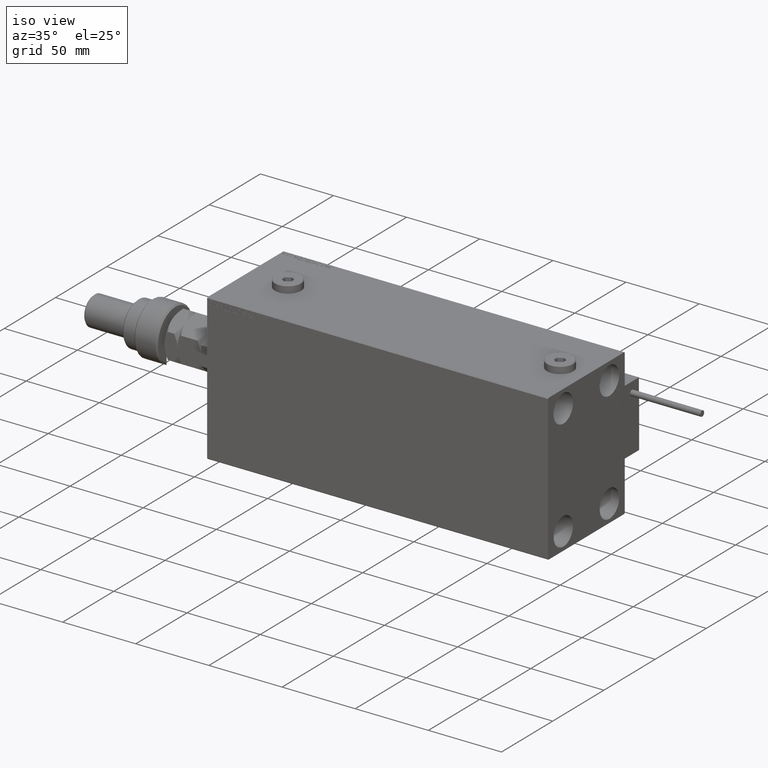
[diagram: clean part render]
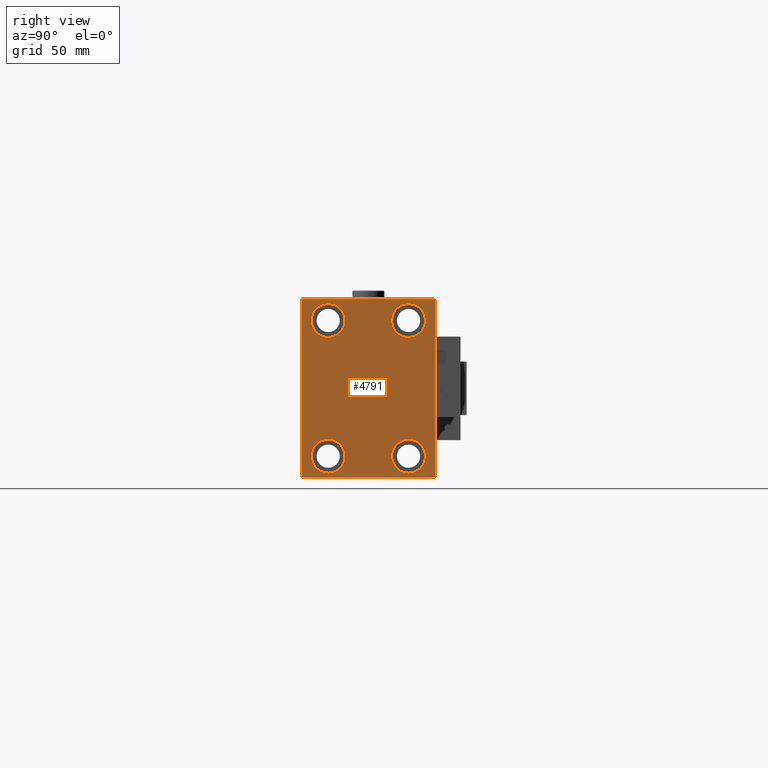
[diagram: tour spotlight — one face highlighted and labeled with its STEP entity id]
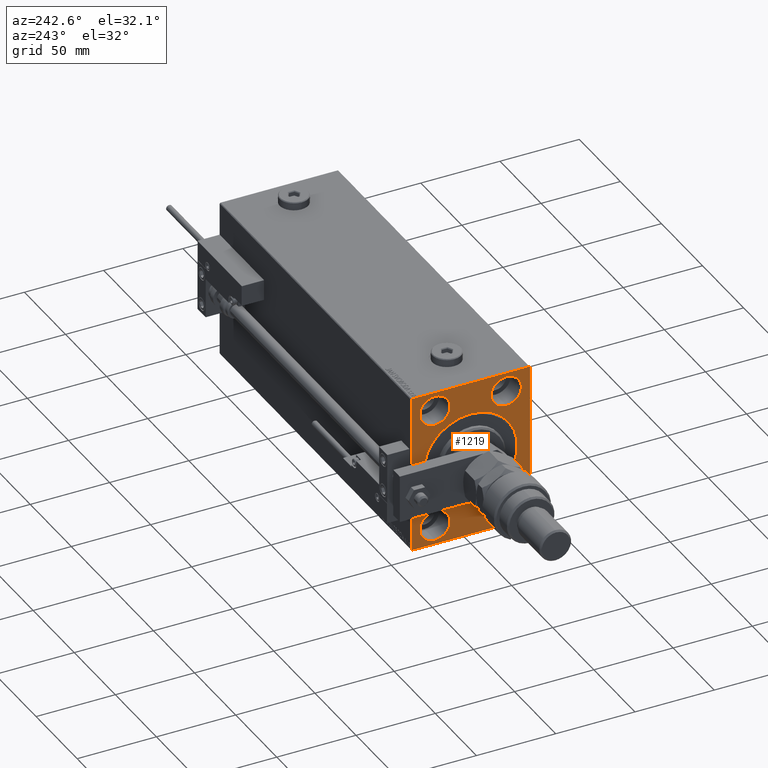
[diagram: tour spotlight — one face highlighted and labeled with its STEP entity id]
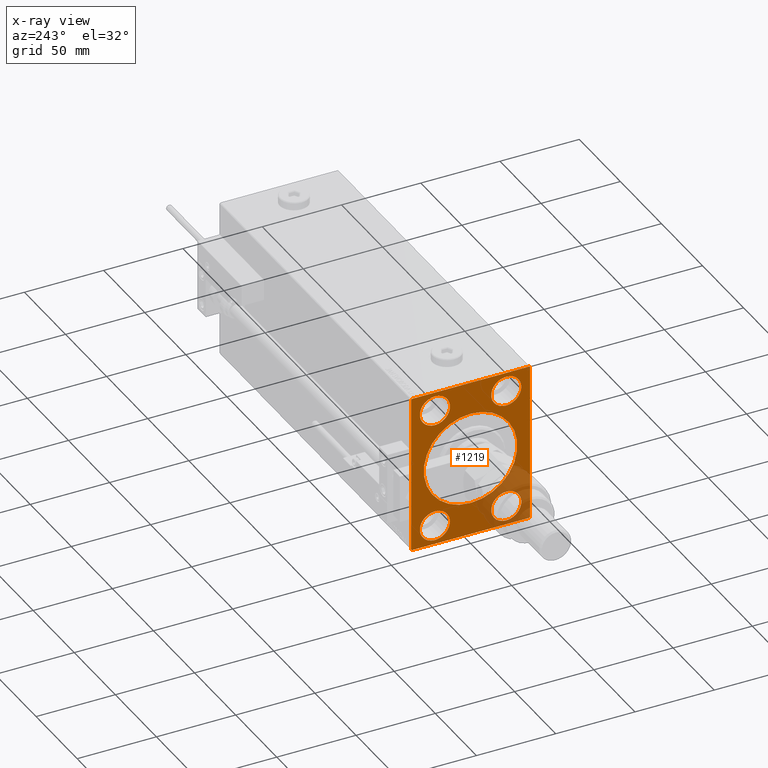
[diagram: x-ray of the same camera — body ghosted, this tour face saturated]
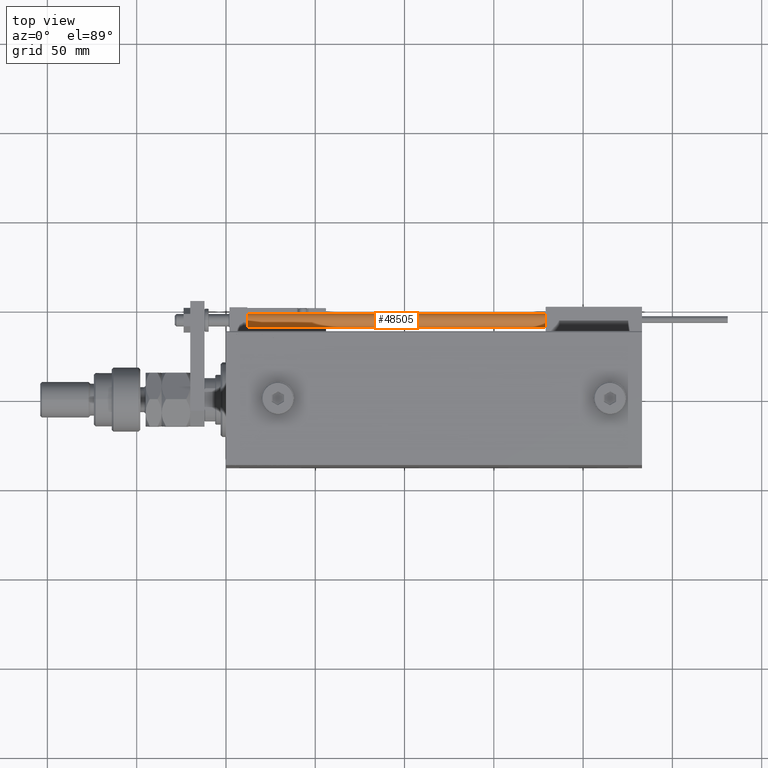
[diagram: tour spotlight — one face highlighted and labeled with its STEP entity id]
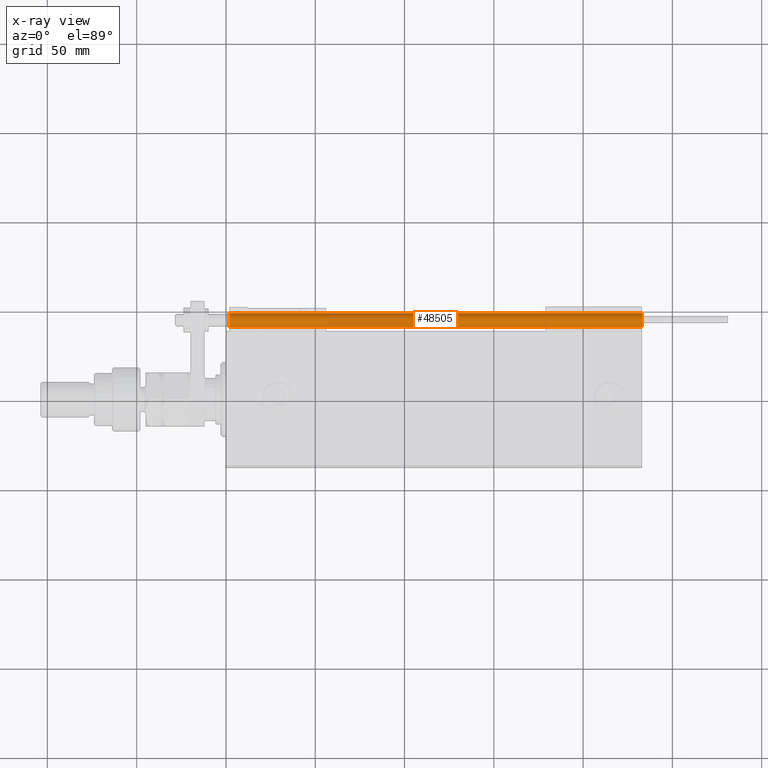
[diagram: x-ray of the same camera — body ghosted, this tour face saturated]
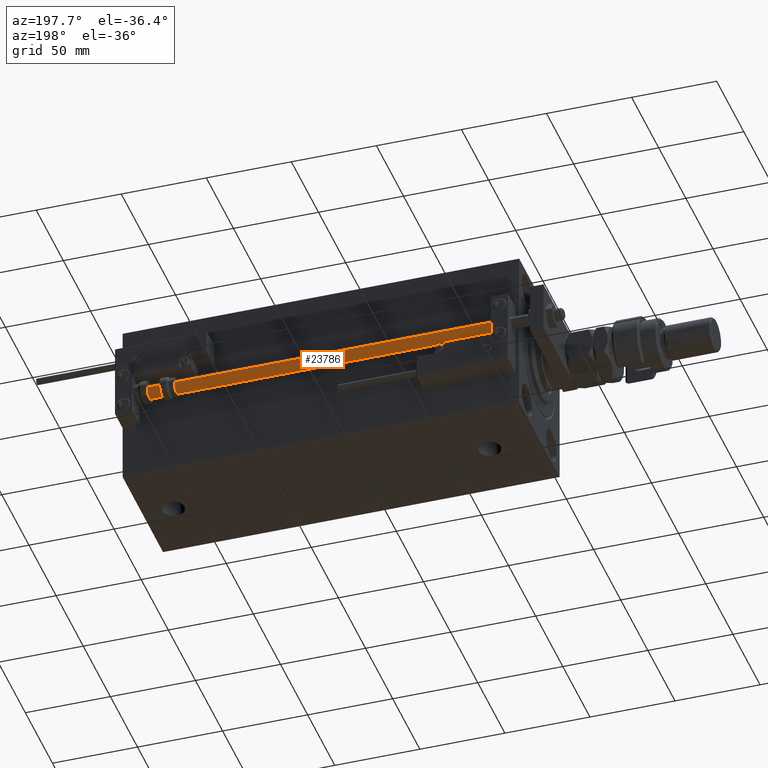
[diagram: tour spotlight — one face highlighted and labeled with its STEP entity id]
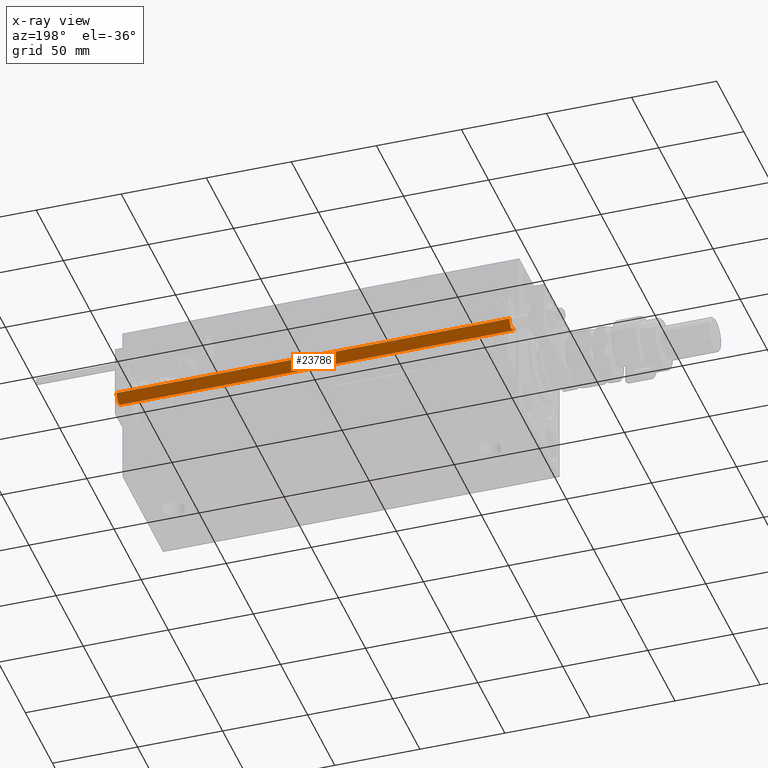
[diagram: x-ray of the same camera — body ghosted, this tour face saturated]
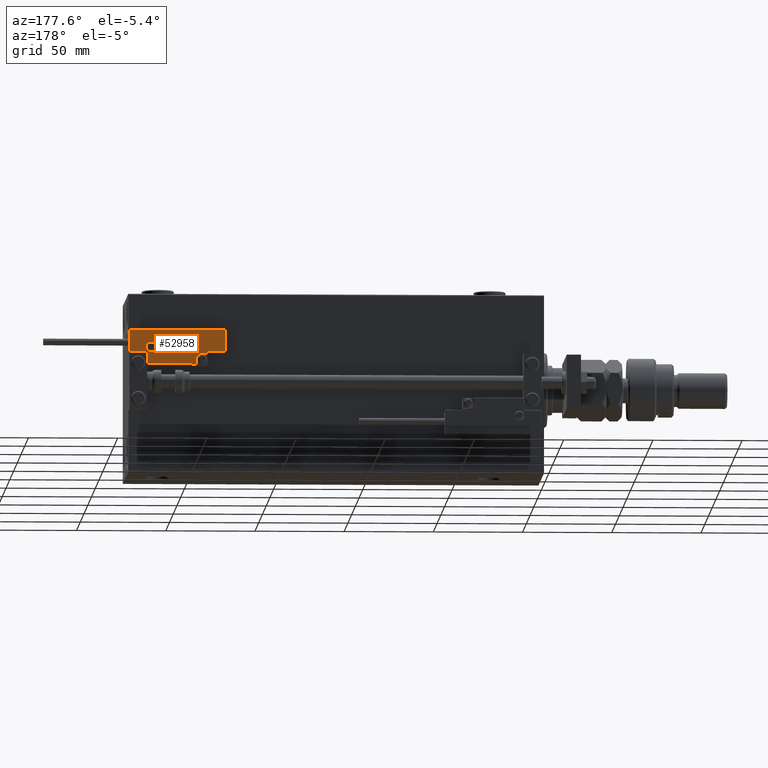
[diagram: tour spotlight — one face highlighted and labeled with its STEP entity id]
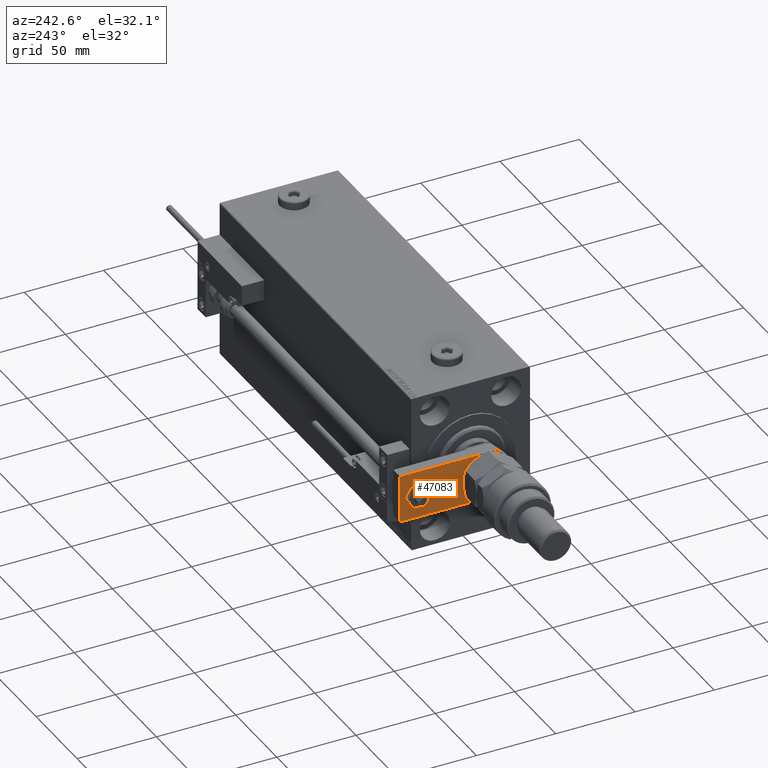
[diagram: tour spotlight — one face highlighted and labeled with its STEP entity id]
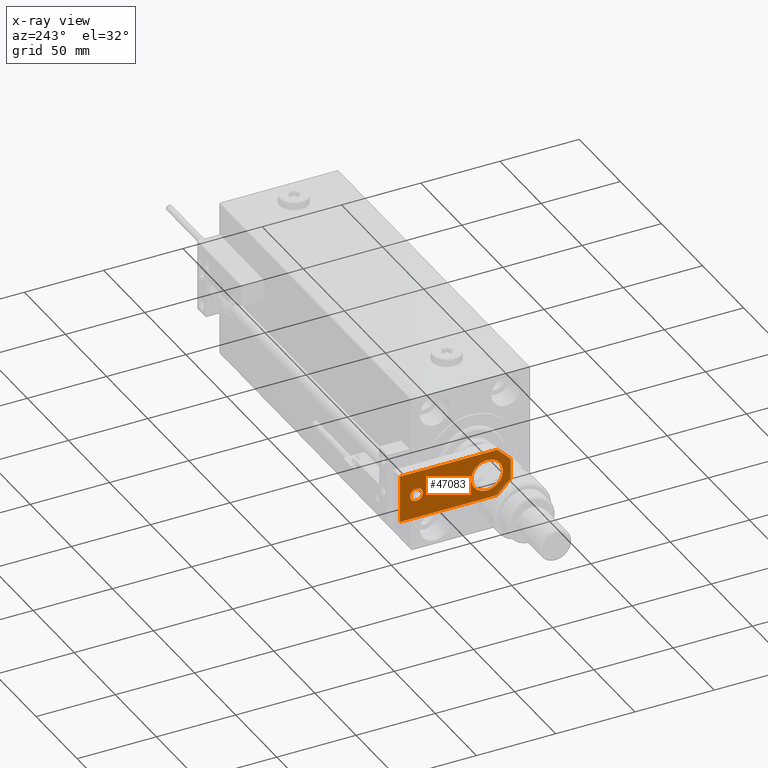
[diagram: x-ray of the same camera — body ghosted, this tour face saturated]
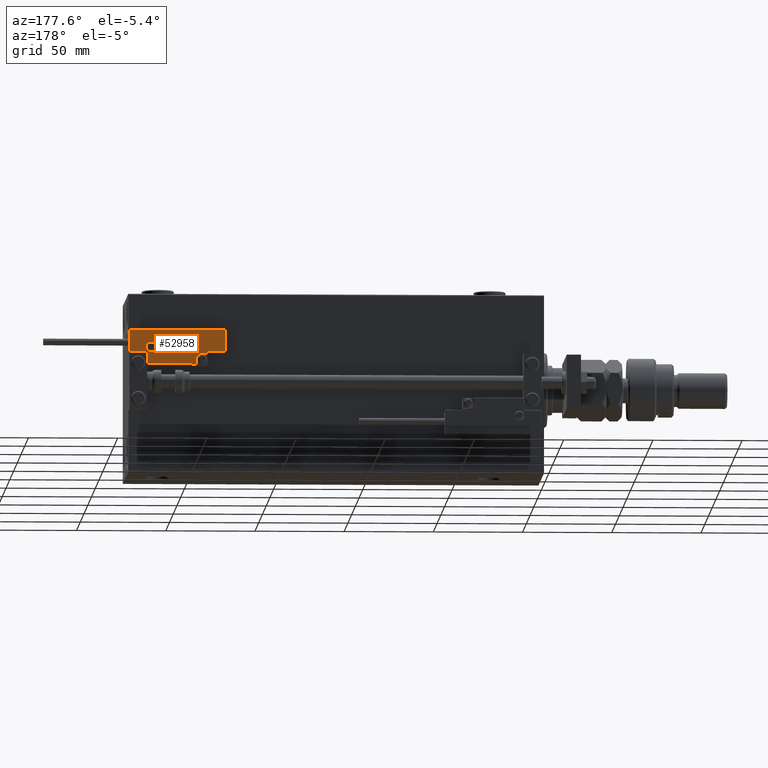
[diagram: tour spotlight — one face highlighted and labeled with its STEP entity id]
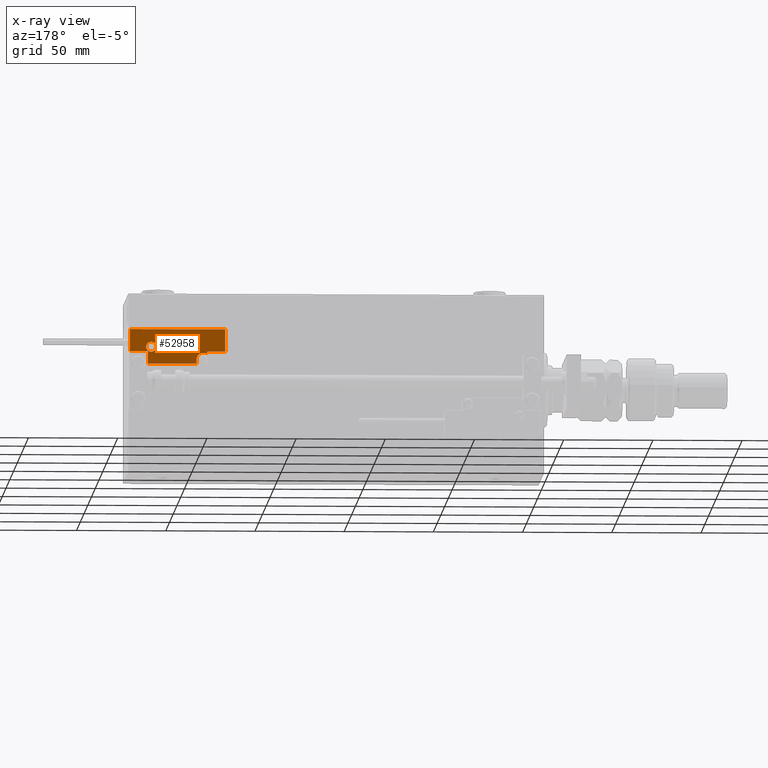
[diagram: x-ray of the same camera — body ghosted, this tour face saturated]
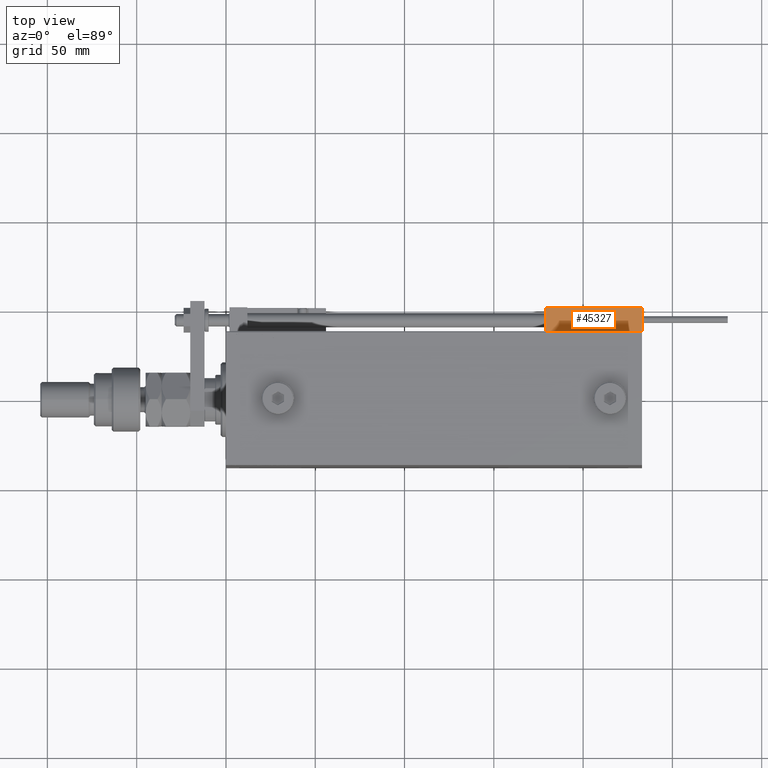
[diagram: tour spotlight — one face highlighted and labeled with its STEP entity id]
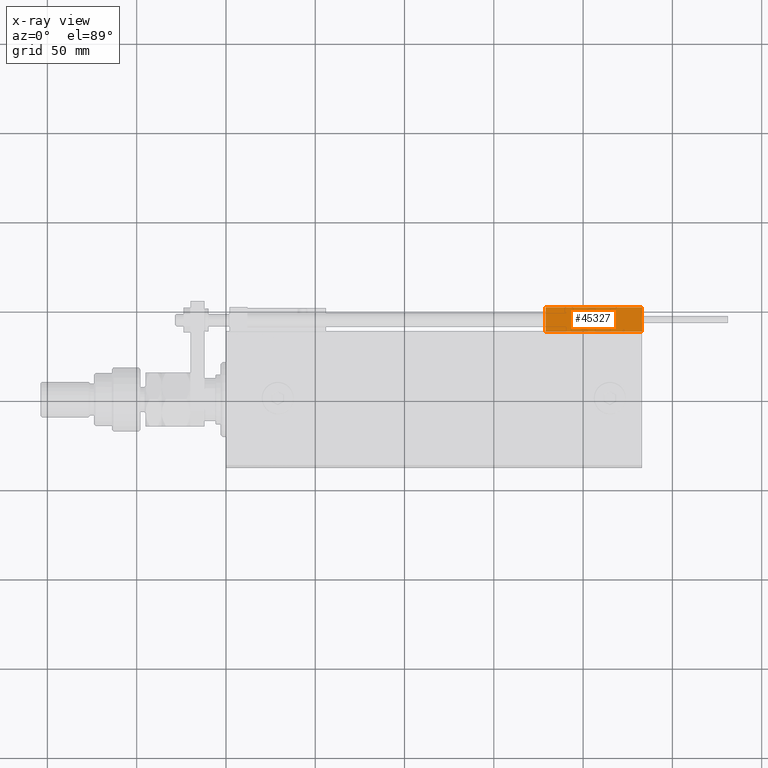
[diagram: x-ray of the same camera — body ghosted, this tour face saturated]
A machine part: a face-by-face anatomy tour. The part has 1424 B-rep faces; the first image is the clean iso view, then the 8 largest visible faces are spotlighted one at a time (largest first), each with its STEP entity span.

Face 1 — right view, entity #4791. In plain terms, the highlighted planar face has unit normal (1, 0, 0).
Definition (entity closure, byte-faithful):
#326 = CARTESIAN_POINT ( 'NONE',  ( 233.0000000000000000, -37.00000000000000711, -50.00000000000000711 ) ) ;
#1190 = LINE ( 'NONE', #9192, #35629 ) ;
#1975 = ORIENTED_EDGE ( 'NONE', *, *, #3385, .T. ) ;
#2384 = DIRECTION ( 'NONE',  ( 0.000000000000000000, 0.000000000000000000, 1.000000000000000000 ) ) ;
#2443 = CIRCLE ( 'NONE', #53521, 9.500000000000001776 ) ;
#2849 = VERTEX_POINT ( 'NONE', #45294 ) ;
#2907 = LINE ( 'NONE', #10916, #39622 ) ;
#3114 = CARTESIAN_POINT ( 'NONE',  ( 233.0000000000000000, 37.49999999999999289, 50.00000000000000711 ) ) ;
#3144 = CARTESIAN_POINT ( 'NONE',  ( 233.0000000000000000, -37.50000000000000711, 49.99999999999999289 ) ) ;
#3344 = EDGE_LOOP ( 'NONE', ( #19881, #25984 ) ) ;
#3385 = EDGE_CURVE ( 'NONE', #48724, #23193, #20745, .T. ) ;
#4791 = ADVANCED_FACE ( 'NONE', ( #37162, #41017, #11258, #23665, #41552 ), #7124, .T. ) ;
#5391 = CIRCLE ( 'NONE', #40622, 9.500000000000001776 ) ;
#5726 = DIRECTION ( 'NONE',  ( -1.000000000000000000, -0.000000000000000000, -0.000000000000000000 ) ) ;
#5819 = CARTESIAN_POINT ( 'NONE',  ( 233.0000000000000000, 37.00000000000003553, -50.00000000000000000 ) ) ;
#5993 = CARTESIAN_POINT ( 'NONE',  ( 233.0000000000000000, -22.49999999999999645, 37.99999999999999289 ) ) ;
#6814 = CIRCLE ( 'NONE', #19149, 9.500000000000001776 ) ;
#7124 = PLANE ( 'NONE',  #28604 ) ;
#7245 = DIRECTION ( 'NONE',  ( -1.000000000000000000, -0.000000000000000000, -0.000000000000000000 ) ) ;
#7399 = DIRECTION ( 'NONE',  ( 0.000000000000000000, 0.000000000000000000, -1.000000000000000000 ) ) ;
#8081 = VERTEX_POINT ( 'NONE', #45734 ) ;
#8659 = EDGE_CURVE ( 'NONE', #18890, #44594, #32210, .T. ) ;
#9086 = DIRECTION ( 'NONE',  ( -0.000000000000000000, 0.7071067811865671127, -0.7071067811865279218 ) ) ;
#9152 = DIRECTION ( 'NONE',  ( -1.000000000000000000, -0.000000000000000000, -0.000000000000000000 ) ) ;
#9192 = CARTESIAN_POINT ( 'NONE',  ( 233.0000000000000000, 43.49999999999922551, 43.50000000000103739 ) ) ;
#9553 = AXIS2_PLACEMENT_3D ( 'NONE', #48396, #28306, #2384 ) ;
#10169 = VERTEX_POINT ( 'NONE', #51913 ) ;
#10387 = VERTEX_POINT ( 'NONE', #46883 ) ;
#10865 = ORIENTED_EDGE ( 'NONE', *, *, #8659, .T. ) ;
#10916 = CARTESIAN_POINT ( 'NONE',  ( 233.0000000000000000, 43.50000000000103739, -43.49999999999862865 ) ) ;
#11003 = DIRECTION ( 'NONE',  ( 0.000000000000000000, 0.000000000000000000, 1.000000000000000000 ) ) ;
#11135 = VERTEX_POINT ( 'NONE', #18937 ) ;
#11258 = FACE_BOUND ( 'NONE', #52883, .T. ) ;
#11572 = ORIENTED_EDGE ( 'NONE', *, *, #28657, .T. ) ;
#11839 = DIRECTION ( 'NONE',  ( 0.000000000000000000, 0.000000000000000000, 1.000000000000000000 ) ) ;
#13636 = CARTESIAN_POINT ( 'NONE',  ( 233.0000000000000000, -37.50000000000000711, -49.50000000000003553 ) ) ;
#14459 = CARTESIAN_POINT ( 'NONE',  ( 233.0000000000000000, 22.50000000000000355, 47.49999999999999289 ) ) ;
#14851 = ORIENTED_EDGE ( 'NONE', *, *, #53313, .T. ) ;
#15399 = CARTESIAN_POINT ( 'NONE',  ( 233.0000000000000000, 0.000000000000000000, 0.000000000000000000 ) ) ;
#15835 = EDGE_CURVE ( 'NONE', #8081, #28687, #2443, .T. ) ;
#15983 = CARTESIAN_POINT ( 'NONE',  ( 233.0000000000000000, -22.49999999999999645, 37.99999999999999289 ) ) ;
#16951 = VECTOR ( 'NONE', #9086, 1000.000000000000000 ) ;
#17027 = CARTESIAN_POINT ( 'NONE',  ( 233.0000000000000000, 36.99999999999999289, 50.00000000000000711 ) ) ;
#17383 = CARTESIAN_POINT ( 'NONE',  ( 233.0000000000000000, -37.00000000000000711, 49.99999999999999289 ) ) ;
#17618 = EDGE_CURVE ( 'NONE', #33695, #44931, #20189, .T. ) ;
#18128 = AXIS2_PLACEMENT_3D ( 'NONE', #24611, #7245, #45810 ) ;
#18890 = VERTEX_POINT ( 'NONE', #29934 ) ;
#18937 = CARTESIAN_POINT ( 'NONE',  ( 233.0000000000000000, 37.49999999999999289, 49.50000000000002842 ) ) ;
#19149 = AXIS2_PLACEMENT_3D ( 'NONE', #53155, #29175, #24232 ) ;
#19457 = CARTESIAN_POINT ( 'NONE',  ( 233.0000000000000000, -22.49999999999999645, 28.49999999999998934 ) ) ;
#19680 = VECTOR ( 'NONE', #20010, 1000.000000000000000 ) ;
#19792 = LINE ( 'NONE', #53387, #48461 ) ;
#19808 = DIRECTION ( 'NONE',  ( -1.000000000000000000, -0.000000000000000000, -0.000000000000000000 ) ) ;
#19881 = ORIENTED_EDGE ( 'NONE', *, *, #34606, .T. ) ;
#19977 = DIRECTION ( 'NONE',  ( 0.000000000000000000, 0.000000000000000000, -1.000000000000000000 ) ) ;
#20010 = DIRECTION ( 'NONE',  ( 0.000000000000000000, -0.7071067811865279218, -0.7071067811865672237 ) ) ;
#20086 = DIRECTION ( 'NONE',  ( 0.000000000000000000, 0.000000000000000000, 1.000000000000000000 ) ) ;
#20189 = CIRCLE ( 'NONE', #9553, 9.500000000000001776 ) ;
#20297 = EDGE_LOOP ( 'NONE', ( #10865, #49142 ) ) ;
#20377 = ORIENTED_EDGE ( 'NONE', *, *, #17618, .T. ) ;
#20618 = CARTESIAN_POINT ( 'NONE',  ( 233.0000000000000000, 22.49999999999999645, -37.99999999999999289 ) ) ;
#20745 = LINE ( 'NONE', #3114, #28490 ) ;
#21104 = CIRCLE ( 'NONE', #50116, 9.500000000000001776 ) ;
#21576 = ORIENTED_EDGE ( 'NONE', *, *, #15835, .T. ) ;
#22559 = DIRECTION ( 'NONE',  ( 0.000000000000000000, 0.000000000000000000, 1.000000000000000000 ) ) ;
#23193 = VERTEX_POINT ( 'NONE', #17383 ) ;
#23665 = FACE_BOUND ( 'NONE', #3344, .T. ) ;
#24232 = DIRECTION ( 'NONE',  ( 0.000000000000000000, 0.000000000000000000, 1.000000000000000000 ) ) ;
#24533 = CIRCLE ( 'NONE', #43906, 9.500000000000001776 ) ;
#24611 = CARTESIAN_POINT ( 'NONE',  ( 233.0000000000000000, -22.50000000000000711, -37.99999999999999289 ) ) ;
#24747 = VERTEX_POINT ( 'NONE', #13636 ) ;
#25082 = EDGE_CURVE ( 'NONE', #24747, #52518, #43249, .T. ) ;
#25984 = ORIENTED_EDGE ( 'NONE', *, *, #51738, .T. ) ;
#26068 = AXIS2_PLACEMENT_3D ( 'NONE', #20618, #19808, #53404 ) ;
#26365 = VERTEX_POINT ( 'NONE', #49506 ) ;
#27063 = ORIENTED_EDGE ( 'NONE', *, *, #38038, .T. ) ;
#27064 = EDGE_LOOP ( 'NONE', ( #30314, #21576 ) ) ;
#28306 = DIRECTION ( 'NONE',  ( -1.000000000000000000, -0.000000000000000000, -0.000000000000000000 ) ) ;
#28490 = VECTOR ( 'NONE', #32330, 1000.000000000000000 ) ;
#28604 = AXIS2_PLACEMENT_3D ( 'NONE', #15399, #45685, #7399 ) ;
#28657 = EDGE_CURVE ( 'NONE', #23193, #2849, #54138, .T. ) ;
#28687 = VERTEX_POINT ( 'NONE', #19457 ) ;
#28951 = ORIENTED_EDGE ( 'NONE', *, *, #39815, .T. ) ;
#29160 = EDGE_LOOP ( 'NONE', ( #1975, #11572, #28951, #39164, #14851, #32901, #27063, #38423 ) ) ;
#29175 = DIRECTION ( 'NONE',  ( -1.000000000000000000, -0.000000000000000000, -0.000000000000000000 ) ) ;
#29934 = CARTESIAN_POINT ( 'NONE',  ( 233.0000000000000000, 22.49999999999999645, -47.49999999999999289 ) ) ;
#30314 = ORIENTED_EDGE ( 'NONE', *, *, #46579, .T. ) ;
#30499 = VECTOR ( 'NONE', #19977, 1000.000000000000000 ) ;
#31868 = CARTESIAN_POINT ( 'NONE',  ( 233.0000000000000000, 22.49999999999999645, -28.49999999999998934 ) ) ;
#32210 = CIRCLE ( 'NONE', #26068, 9.500000000000001776 ) ;
#32330 = DIRECTION ( 'NONE',  ( 0.000000000000000000, -1.000000000000000000, -1.850371707708594316E-16 ) ) ;
#32336 = ORIENTED_EDGE ( 'NONE', *, *, #41612, .T. ) ;
#32901 = ORIENTED_EDGE ( 'NONE', *, *, #51995, .T. ) ;
#33366 = EDGE_CURVE ( 'NONE', #11135, #48724, #1190, .T. ) ;
#33695 = VERTEX_POINT ( 'NONE', #39359 ) ;
#34606 = EDGE_CURVE ( 'NONE', #26365, #10169, #36613, .T. ) ;
#34821 = DIRECTION ( 'NONE',  ( -0.000000000000000000, -0.7071067811865622277, 0.7071067811865328068 ) ) ;
#35629 = VECTOR ( 'NONE', #34821, 1000.000000000000000 ) ;
#36319 = CARTESIAN_POINT ( 'NONE',  ( 233.0000000000000000, 37.50000000000000711, -50.00000000000000000 ) ) ;
#36613 = CIRCLE ( 'NONE', #18128, 9.500000000000001776 ) ;
#37162 = FACE_BOUND ( 'NONE', #20297, .T. ) ;
#38038 = EDGE_CURVE ( 'NONE', #10387, #11135, #48707, .T. ) ;
#38423 = ORIENTED_EDGE ( 'NONE', *, *, #33366, .T. ) ;
#39014 = VERTEX_POINT ( 'NONE', #5819 ) ;
#39164 = ORIENTED_EDGE ( 'NONE', *, *, #25082, .T. ) ;
#39359 = CARTESIAN_POINT ( 'NONE',  ( 233.0000000000000000, 22.50000000000000355, 28.49999999999998934 ) ) ;
#39622 = VECTOR ( 'NONE', #40663, 1000.000000000000000 ) ;
#39661 = CARTESIAN_POINT ( 'NONE',  ( 233.0000000000000000, 22.49999999999999645, -37.99999999999999289 ) ) ;
#39815 = EDGE_CURVE ( 'NONE', #2849, #24747, #40892, .T. ) ;
#40622 = AXIS2_PLACEMENT_3D ( 'NONE', #49809, #49262, #20086 ) ;
#40663 = DIRECTION ( 'NONE',  ( -0.000000000000000000, 0.7071067811865279218, 0.7071067811865671127 ) ) ;
#40892 = LINE ( 'NONE', #3144, #30499 ) ;
#41017 = FACE_BOUND ( 'NONE', #27064, .T. ) ;
#41552 = FACE_OUTER_BOUND ( 'NONE', #29160, .T. ) ;
#41612 = EDGE_CURVE ( 'NONE', #44931, #33695, #6814, .T. ) ;
#42709 = CARTESIAN_POINT ( 'NONE',  ( 233.0000000000000000, -43.49999999999898392, -43.50000000000139266 ) ) ;
#43249 = LINE ( 'NONE', #42709, #16951 ) ;
#43906 = AXIS2_PLACEMENT_3D ( 'NONE', #39661, #9152, #11003 ) ;
#44235 = EDGE_CURVE ( 'NONE', #44594, #18890, #24533, .T. ) ;
#44594 = VERTEX_POINT ( 'NONE', #31868 ) ;
#44931 = VERTEX_POINT ( 'NONE', #14459 ) ;
#45116 = DIRECTION ( 'NONE',  ( 0.000000000000000000, 1.000000000000000000, 9.251858538542970348E-17 ) ) ;
#45294 = CARTESIAN_POINT ( 'NONE',  ( 233.0000000000000000, -37.50000000000000711, 49.49999999999996447 ) ) ;
#45685 = DIRECTION ( 'NONE',  ( 1.000000000000000000, 0.000000000000000000, 0.000000000000000000 ) ) ;
#45734 = CARTESIAN_POINT ( 'NONE',  ( 233.0000000000000000, -22.49999999999999645, 47.49999999999999289 ) ) ;
#45810 = DIRECTION ( 'NONE',  ( 0.000000000000000000, 0.000000000000000000, 1.000000000000000000 ) ) ;
#46579 = EDGE_CURVE ( 'NONE', #28687, #8081, #21104, .T. ) ;
#46883 = CARTESIAN_POINT ( 'NONE',  ( 233.0000000000000000, 37.50000000000000711, -49.50000000000000000 ) ) ;
#47116 = VECTOR ( 'NONE', #52846, 1000.000000000000000 ) ;
#48396 = CARTESIAN_POINT ( 'NONE',  ( 233.0000000000000000, 22.50000000000000355, 37.99999999999999289 ) ) ;
#48461 = VECTOR ( 'NONE', #45116, 1000.000000000000000 ) ;
#48707 = LINE ( 'NONE', #36319, #47116 ) ;
#48724 = VERTEX_POINT ( 'NONE', #17027 ) ;
#49142 = ORIENTED_EDGE ( 'NONE', *, *, #44235, .T. ) ;
#49262 = DIRECTION ( 'NONE',  ( -1.000000000000000000, -0.000000000000000000, -0.000000000000000000 ) ) ;
#49506 = CARTESIAN_POINT ( 'NONE',  ( 233.0000000000000000, -22.50000000000000711, -47.49999999999999289 ) ) ;
#49580 = DIRECTION ( 'NONE',  ( -1.000000000000000000, -0.000000000000000000, -0.000000000000000000 ) ) ;
#49809 = CARTESIAN_POINT ( 'NONE',  ( 233.0000000000000000, -22.50000000000000711, -37.99999999999999289 ) ) ;
#50116 = AXIS2_PLACEMENT_3D ( 'NONE', #15983, #49580, #11839 ) ;
#51738 = EDGE_CURVE ( 'NONE', #10169, #26365, #5391, .T. ) ;
#51913 = CARTESIAN_POINT ( 'NONE',  ( 233.0000000000000000, -22.50000000000000711, -28.49999999999998934 ) ) ;
#51995 = EDGE_CURVE ( 'NONE', #39014, #10387, #2907, .T. ) ;
#52518 = VERTEX_POINT ( 'NONE', #326 ) ;
#52846 = DIRECTION ( 'NONE',  ( 0.000000000000000000, -1.387778780781445676E-16, 1.000000000000000000 ) ) ;
#52883 = EDGE_LOOP ( 'NONE', ( #20377, #32336 ) ) ;
#53045 = CARTESIAN_POINT ( 'NONE',  ( 233.0000000000000000, -43.50000000000103029, 43.49999999999860734 ) ) ;
#53155 = CARTESIAN_POINT ( 'NONE',  ( 233.0000000000000000, 22.50000000000000355, 37.99999999999999289 ) ) ;
#53313 = EDGE_CURVE ( 'NONE', #52518, #39014, #19792, .T. ) ;
#53387 = CARTESIAN_POINT ( 'NONE',  ( 233.0000000000000000, -37.50000000000000711, -50.00000000000000711 ) ) ;
#53404 = DIRECTION ( 'NONE',  ( 0.000000000000000000, 0.000000000000000000, 1.000000000000000000 ) ) ;
#53521 = AXIS2_PLACEMENT_3D ( 'NONE', #5993, #5726, #22559 ) ;
#54138 = LINE ( 'NONE', #53045, #19680 ) ;

Face 2 — auxiliary view, entity #1219. An x-ray twin of the same camera follows (body ghosted, this face saturated) — the face is partly hidden behind the body. In plain terms, the highlighted planar face has unit normal (1, 0, 0).
Definition (entity closure, byte-faithful):
#146 = DIRECTION ( 'NONE',  ( 1.000000000000000000, 0.000000000000000000, 0.000000000000000000 ) ) ;
#388 = CARTESIAN_POINT ( 'NONE',  ( 0.000000000000000000, 37.50000000000000711, -49.50000000000000000 ) ) ;
#574 = DIRECTION ( 'NONE',  ( -1.000000000000000000, 0.000000000000000000, 0.000000000000000000 ) ) ;
#756 = LINE ( 'NONE', #17862, #36849 ) ;
#1219 = ADVANCED_FACE ( 'NONE', ( #16616, #17420, #33419, #50208, #8598, #12470 ), #29285, .F. ) ;
#1383 = VECTOR ( 'NONE', #1555, 1000.000000000000000 ) ;
#1555 = DIRECTION ( 'NONE',  ( 0.000000000000000000, 0.000000000000000000, -1.000000000000000000 ) ) ;
#1776 = CIRCLE ( 'NONE', #7971, 9.500000000000001776 ) ;
#2026 = AXIS2_PLACEMENT_3D ( 'NONE', #37820, #29560, #51020 ) ;
#2593 = CARTESIAN_POINT ( 'NONE',  ( 0.000000000000000000, -22.49999999999999645, 37.99999999999999289 ) ) ;
#3179 = DIRECTION ( 'NONE',  ( -1.000000000000000000, 0.000000000000000000, 0.000000000000000000 ) ) ;
#3688 = DIRECTION ( 'NONE',  ( -1.000000000000000000, 0.000000000000000000, 0.000000000000000000 ) ) ;
#4013 = CARTESIAN_POINT ( 'NONE',  ( 0.000000000000000000, -22.50000000000000711, -37.99999999999999289 ) ) ;
#4041 = CARTESIAN_POINT ( 'NONE',  ( 0.000000000000000000, 36.99999999999999289, 50.00000000000000711 ) ) ;
#4280 = DIRECTION ( 'NONE',  ( -1.000000000000000000, 0.000000000000000000, 0.000000000000000000 ) ) ;
#4292 = AXIS2_PLACEMENT_3D ( 'NONE', #21116, #146, #18344 ) ;
#4653 = VERTEX_POINT ( 'NONE', #20959 ) ;
#5661 = AXIS2_PLACEMENT_3D ( 'NONE', #25181, #3688, #41983 ) ;
#5696 = AXIS2_PLACEMENT_3D ( 'NONE', #20286, #3179, #24402 ) ;
#5957 = CARTESIAN_POINT ( 'NONE',  ( 0.000000000000000000, -37.50000000000000711, 49.99999999999999289 ) ) ;
#6217 = ORIENTED_EDGE ( 'NONE', *, *, #17929, .T. ) ;
#6537 = DIRECTION ( 'NONE',  ( 0.000000000000000000, 0.000000000000000000, 1.000000000000000000 ) ) ;
#6934 = CIRCLE ( 'NONE', #47382, 9.500000000000001776 ) ;
#6984 = CARTESIAN_POINT ( 'NONE',  ( 0.000000000000000000, 22.50000000000000355, 37.99999999999999289 ) ) ;
#7548 = CARTESIAN_POINT ( 'NONE',  ( 0.000000000000000000, -37.50000000000000711, 49.49999999999996447 ) ) ;
#7774 = VERTEX_POINT ( 'NONE', #4041 ) ;
#7839 = AXIS2_PLACEMENT_3D ( 'NONE', #6984, #37759, #21221 ) ;
#7971 = AXIS2_PLACEMENT_3D ( 'NONE', #10636, #53059, #27726 ) ;
#8598 = FACE_BOUND ( 'NONE', #33802, .T. ) ;
#9207 = CIRCLE ( 'NONE', #5661, 9.500000000000001776 ) ;
#10232 = DIRECTION ( 'NONE',  ( 0.000000000000000000, -1.000000000000000000, -1.850371707708594316E-16 ) ) ;
#10477 = CIRCLE ( 'NONE', #4292, 29.49999999999994671 ) ;
#10636 = CARTESIAN_POINT ( 'NONE',  ( 0.000000000000000000, -22.49999999999999645, 37.99999999999999289 ) ) ;
#11047 = EDGE_CURVE ( 'NONE', #51990, #14497, #30252, .T. ) ;
#11323 = VERTEX_POINT ( 'NONE', #12029 ) ;
#12029 = CARTESIAN_POINT ( 'NONE',  ( 0.000000000000000000, 22.49999999999999645, -47.49999999999999289 ) ) ;
#12470 = FACE_OUTER_BOUND ( 'NONE', #47300, .T. ) ;
#12700 = CARTESIAN_POINT ( 'NONE',  ( 0.000000000000000000, 0.000000000000000000, 0.000000000000000000 ) ) ;
#14207 = VERTEX_POINT ( 'NONE', #42347 ) ;
#14464 = DIRECTION ( 'NONE',  ( 0.000000000000000000, 0.000000000000000000, 1.000000000000000000 ) ) ;
#14497 = VERTEX_POINT ( 'NONE', #49751 ) ;
#14585 = DIRECTION ( 'NONE',  ( 0.000000000000000000, -0.7071067811865279218, -0.7071067811865671127 ) ) ;
#14922 = VECTOR ( 'NONE', #45560, 1000.000000000000000 ) ;
#15688 = VERTEX_POINT ( 'NONE', #25329 ) ;
#15837 = ORIENTED_EDGE ( 'NONE', *, *, #22660, .F. ) ;
#15986 = VERTEX_POINT ( 'NONE', #23510 ) ;
#16305 = CARTESIAN_POINT ( 'NONE',  ( 0.000000000000000000, 3.612708057484685293E-15, -29.49999999999994671 ) ) ;
#16616 = FACE_BOUND ( 'NONE', #40470, .T. ) ;
#17033 = VERTEX_POINT ( 'NONE', #388 ) ;
#17420 = FACE_BOUND ( 'NONE', #40632, .T. ) ;
#17862 = CARTESIAN_POINT ( 'NONE',  ( 0.000000000000000000, -37.50000000000000711, -50.00000000000000711 ) ) ;
#17929 = EDGE_CURVE ( 'NONE', #30917, #38623, #10477, .T. ) ;
#18344 = DIRECTION ( 'NONE',  ( 0.000000000000000000, 0.000000000000000000, -1.000000000000000000 ) ) ;
#19976 = LINE ( 'NONE', #7548, #14922 ) ;
#20070 = VERTEX_POINT ( 'NONE', #45726 ) ;
#20270 = AXIS2_PLACEMENT_3D ( 'NONE', #2593, #32093, #14464 ) ;
#20286 = CARTESIAN_POINT ( 'NONE',  ( 0.000000000000000000, -22.50000000000000711, -37.99999999999999289 ) ) ;
#20722 = ORIENTED_EDGE ( 'NONE', *, *, #53957, .T. ) ;
#20959 = CARTESIAN_POINT ( 'NONE',  ( 0.000000000000000000, 37.00000000000003553, -50.00000000000000000 ) ) ;
#21069 = VECTOR ( 'NONE', #14585, 1000.000000000000000 ) ;
#21116 = CARTESIAN_POINT ( 'NONE',  ( 0.000000000000000000, 0.000000000000000000, 0.000000000000000000 ) ) ;
#21221 = DIRECTION ( 'NONE',  ( 0.000000000000000000, 0.000000000000000000, 1.000000000000000000 ) ) ;
#21231 = EDGE_CURVE ( 'NONE', #17033, #4653, #22584, .T. ) ;
#21533 = CARTESIAN_POINT ( 'NONE',  ( 0.000000000000000000, 22.50000000000000355, 37.99999999999999289 ) ) ;
#22283 = ORIENTED_EDGE ( 'NONE', *, *, #22721, .F. ) ;
#22584 = LINE ( 'NONE', #52315, #21069 ) ;
#22660 = EDGE_CURVE ( 'NONE', #17033, #15986, #35399, .T. ) ;
#22677 = ORIENTED_EDGE ( 'NONE', *, *, #31036, .T. ) ;
#22713 = CARTESIAN_POINT ( 'NONE',  ( 0.000000000000000000, 0.000000000000000000, 29.49999999999994671 ) ) ;
#22721 = EDGE_CURVE ( 'NONE', #52412, #50082, #28156, .T. ) ;
#22893 = DIRECTION ( 'NONE',  ( 0.000000000000000000, 0.000000000000000000, 1.000000000000000000 ) ) ;
#23163 = DIRECTION ( 'NONE',  ( -0.000000000000000000, -0.7071067811865671127, 0.7071067811865279218 ) ) ;
#23234 = AXIS2_PLACEMENT_3D ( 'NONE', #12700, #34449, #33913 ) ;
#23510 = CARTESIAN_POINT ( 'NONE',  ( 0.000000000000000000, 37.49999999999999289, 49.50000000000002842 ) ) ;
#23698 = ORIENTED_EDGE ( 'NONE', *, *, #49341, .T. ) ;
#23994 = ORIENTED_EDGE ( 'NONE', *, *, #27156, .F. ) ;
#24115 = CIRCLE ( 'NONE', #23234, 29.49999999999994671 ) ;
#24402 = DIRECTION ( 'NONE',  ( 0.000000000000000000, 0.000000000000000000, 1.000000000000000000 ) ) ;
#24440 = VERTEX_POINT ( 'NONE', #45947 ) ;
#24757 = ORIENTED_EDGE ( 'NONE', *, *, #11047, .F. ) ;
#25181 = CARTESIAN_POINT ( 'NONE',  ( 0.000000000000000000, 22.49999999999999645, -37.99999999999999289 ) ) ;
#25329 = CARTESIAN_POINT ( 'NONE',  ( 0.000000000000000000, -37.00000000000000711, -50.00000000000000711 ) ) ;
#26663 = CARTESIAN_POINT ( 'NONE',  ( 0.000000000000000000, 22.49999999999999645, -37.99999999999999289 ) ) ;
#26841 = CARTESIAN_POINT ( 'NONE',  ( 0.000000000000000000, -22.50000000000000711, -28.49999999999998934 ) ) ;
#27156 = EDGE_CURVE ( 'NONE', #11323, #31239, #35383, .T. ) ;
#27250 = LINE ( 'NONE', #39379, #45184 ) ;
#27657 = EDGE_LOOP ( 'NONE', ( #29239, #42367 ) ) ;
#27726 = DIRECTION ( 'NONE',  ( 0.000000000000000000, 0.000000000000000000, 1.000000000000000000 ) ) ;
#28156 = CIRCLE ( 'NONE', #20270, 9.500000000000001776 ) ;
#28226 = ORIENTED_EDGE ( 'NONE', *, *, #37164, .F. ) ;
#28280 = VECTOR ( 'NONE', #23163, 1000.000000000000000 ) ;
#29239 = ORIENTED_EDGE ( 'NONE', *, *, #53902, .F. ) ;
#29285 = PLANE ( 'NONE',  #2026 ) ;
#29560 = DIRECTION ( 'NONE',  ( 1.000000000000000000, 0.000000000000000000, 0.000000000000000000 ) ) ;
#29602 = EDGE_CURVE ( 'NONE', #7774, #15986, #27250, .T. ) ;
#29871 = CIRCLE ( 'NONE', #7839, 9.500000000000001776 ) ;
#30252 = LINE ( 'NONE', #5957, #1383 ) ;
#30917 = VERTEX_POINT ( 'NONE', #16305 ) ;
#31036 = EDGE_CURVE ( 'NONE', #38623, #30917, #24115, .T. ) ;
#31239 = VERTEX_POINT ( 'NONE', #52332 ) ;
#32093 = DIRECTION ( 'NONE',  ( -1.000000000000000000, 0.000000000000000000, 0.000000000000000000 ) ) ;
#32466 = CARTESIAN_POINT ( 'NONE',  ( 0.000000000000000000, 22.50000000000000355, 47.49999999999999289 ) ) ;
#33419 = FACE_BOUND ( 'NONE', #49296, .T. ) ;
#33802 = EDGE_LOOP ( 'NONE', ( #28226, #49045 ) ) ;
#33913 = DIRECTION ( 'NONE',  ( 0.000000000000000000, 0.000000000000000000, -1.000000000000000000 ) ) ;
#34449 = DIRECTION ( 'NONE',  ( 1.000000000000000000, 0.000000000000000000, 0.000000000000000000 ) ) ;
#34507 = ORIENTED_EDGE ( 'NONE', *, *, #52692, .F. ) ;
#35383 = CIRCLE ( 'NONE', #39793, 9.500000000000001776 ) ;
#35399 = LINE ( 'NONE', #49165, #38675 ) ;
#35555 = EDGE_CURVE ( 'NONE', #31239, #11323, #9207, .T. ) ;
#36849 = VECTOR ( 'NONE', #42654, 1000.000000000000000 ) ;
#37164 = EDGE_CURVE ( 'NONE', #38696, #24440, #51489, .T. ) ;
#37319 = ORIENTED_EDGE ( 'NONE', *, *, #35555, .F. ) ;
#37759 = DIRECTION ( 'NONE',  ( -1.000000000000000000, 0.000000000000000000, 0.000000000000000000 ) ) ;
#37820 = CARTESIAN_POINT ( 'NONE',  ( 0.000000000000000000, 0.000000000000000000, 0.000000000000000000 ) ) ;
#38623 = VERTEX_POINT ( 'NONE', #22713 ) ;
#38675 = VECTOR ( 'NONE', #43940, 1000.000000000000000 ) ;
#38696 = VERTEX_POINT ( 'NONE', #26841 ) ;
#38749 = ORIENTED_EDGE ( 'NONE', *, *, #29602, .T. ) ;
#38898 = LINE ( 'NONE', #47153, #44906 ) ;
#39379 = CARTESIAN_POINT ( 'NONE',  ( 0.000000000000000000, 36.99999999999999289, 50.00000000000000711 ) ) ;
#39793 = AXIS2_PLACEMENT_3D ( 'NONE', #26663, #43467, #6537 ) ;
#40231 = CARTESIAN_POINT ( 'NONE',  ( 0.000000000000000000, -37.00000000000000711, -50.00000000000000711 ) ) ;
#40470 = EDGE_LOOP ( 'NONE', ( #22677, #6217 ) ) ;
#40632 = EDGE_LOOP ( 'NONE', ( #37319, #23994 ) ) ;
#41983 = DIRECTION ( 'NONE',  ( 0.000000000000000000, 0.000000000000000000, 1.000000000000000000 ) ) ;
#42347 = CARTESIAN_POINT ( 'NONE',  ( 0.000000000000000000, 22.50000000000000355, 28.49999999999998934 ) ) ;
#42367 = ORIENTED_EDGE ( 'NONE', *, *, #48457, .F. ) ;
#42579 = DIRECTION ( 'NONE',  ( 0.000000000000000000, 0.000000000000000000, 1.000000000000000000 ) ) ;
#42654 = DIRECTION ( 'NONE',  ( 0.000000000000000000, 1.000000000000000000, 9.251858538542970348E-17 ) ) ;
#43198 = CIRCLE ( 'NONE', #44106, 9.500000000000001776 ) ;
#43467 = DIRECTION ( 'NONE',  ( -1.000000000000000000, 0.000000000000000000, 0.000000000000000000 ) ) ;
#43491 = EDGE_CURVE ( 'NONE', #15688, #4653, #756, .T. ) ;
#43940 = DIRECTION ( 'NONE',  ( 0.000000000000000000, -1.387778780781445676E-16, 1.000000000000000000 ) ) ;
#44106 = AXIS2_PLACEMENT_3D ( 'NONE', #21533, #574, #22893 ) ;
#44762 = EDGE_CURVE ( 'NONE', #24440, #38696, #6934, .T. ) ;
#44906 = VECTOR ( 'NONE', #10232, 1000.000000000000000 ) ;
#45184 = VECTOR ( 'NONE', #51503, 1000.000000000000000 ) ;
#45560 = DIRECTION ( 'NONE',  ( -0.000000000000000000, 0.7071067811865279218, 0.7071067811865672237 ) ) ;
#45726 = CARTESIAN_POINT ( 'NONE',  ( 0.000000000000000000, -37.00000000000000711, 49.99999999999999289 ) ) ;
#45947 = CARTESIAN_POINT ( 'NONE',  ( 0.000000000000000000, -22.50000000000000711, -47.49999999999999289 ) ) ;
#46652 = CARTESIAN_POINT ( 'NONE',  ( 0.000000000000000000, -22.49999999999999645, 47.49999999999999289 ) ) ;
#47153 = CARTESIAN_POINT ( 'NONE',  ( 0.000000000000000000, 37.49999999999999289, 50.00000000000000711 ) ) ;
#47300 = EDGE_LOOP ( 'NONE', ( #24757, #23698, #34507, #38749, #15837, #48320, #49897, #20722 ) ) ;
#47382 = AXIS2_PLACEMENT_3D ( 'NONE', #4013, #4280, #42579 ) ;
#48090 = CARTESIAN_POINT ( 'NONE',  ( 0.000000000000000000, -37.50000000000000711, 49.49999999999996447 ) ) ;
#48320 = ORIENTED_EDGE ( 'NONE', *, *, #21231, .T. ) ;
#48457 = EDGE_CURVE ( 'NONE', #14207, #51715, #29871, .T. ) ;
#49045 = ORIENTED_EDGE ( 'NONE', *, *, #44762, .F. ) ;
#49165 = CARTESIAN_POINT ( 'NONE',  ( 0.000000000000000000, 37.50000000000000711, -50.00000000000000000 ) ) ;
#49296 = EDGE_LOOP ( 'NONE', ( #52987, #22283 ) ) ;
#49341 = EDGE_CURVE ( 'NONE', #51990, #20070, #19976, .T. ) ;
#49751 = CARTESIAN_POINT ( 'NONE',  ( 0.000000000000000000, -37.50000000000000711, -49.50000000000003553 ) ) ;
#49897 = ORIENTED_EDGE ( 'NONE', *, *, #43491, .F. ) ;
#50082 = VERTEX_POINT ( 'NONE', #46652 ) ;
#50208 = FACE_BOUND ( 'NONE', #27657, .T. ) ;
#51020 = DIRECTION ( 'NONE',  ( 0.000000000000000000, 0.000000000000000000, -1.000000000000000000 ) ) ;
#51489 = CIRCLE ( 'NONE', #5696, 9.500000000000001776 ) ;
#51503 = DIRECTION ( 'NONE',  ( -0.000000000000000000, 0.7071067811865622277, -0.7071067811865328068 ) ) ;
#51715 = VERTEX_POINT ( 'NONE', #32466 ) ;
#51990 = VERTEX_POINT ( 'NONE', #48090 ) ;
#52016 = EDGE_CURVE ( 'NONE', #50082, #52412, #1776, .T. ) ;
#52315 = CARTESIAN_POINT ( 'NONE',  ( 0.000000000000000000, 37.50000000000000711, -49.50000000000000000 ) ) ;
#52332 = CARTESIAN_POINT ( 'NONE',  ( 0.000000000000000000, 22.49999999999999645, -28.49999999999998934 ) ) ;
#52412 = VERTEX_POINT ( 'NONE', #52724 ) ;
#52627 = LINE ( 'NONE', #40231, #28280 ) ;
#52692 = EDGE_CURVE ( 'NONE', #7774, #20070, #38898, .T. ) ;
#52724 = CARTESIAN_POINT ( 'NONE',  ( 0.000000000000000000, -22.49999999999999645, 28.49999999999998934 ) ) ;
#52987 = ORIENTED_EDGE ( 'NONE', *, *, #52016, .F. ) ;
#53059 = DIRECTION ( 'NONE',  ( -1.000000000000000000, 0.000000000000000000, 0.000000000000000000 ) ) ;
#53902 = EDGE_CURVE ( 'NONE', #51715, #14207, #43198, .T. ) ;
#53957 = EDGE_CURVE ( 'NONE', #15688, #14497, #52627, .T. ) ;

Face 3 — top view, entity #48505. An x-ray twin of the same camera follows (body ghosted, this face saturated) — the face is partly hidden behind the body. In plain terms, the highlighted cylindrical surface (edge-blend (fillet) strip) has radius 4 mm, axis along (-1, 0, 0).
Definition (entity closure, byte-faithful):
#3521 = CIRCLE ( 'NONE', #34313, 4.000000000000000000 ) ;
#5194 = VERTEX_POINT ( 'NONE', #22996 ) ;
#6061 = CARTESIAN_POINT ( 'NONE',  ( 4.000000000000000000, 4.898587196589412829E-16, 233.0000000000000000 ) ) ;
#6184 = CARTESIAN_POINT ( 'NONE',  ( 0.000000000000000000, 0.000000000000000000, 2.000000000000029310 ) ) ;
#6662 = AXIS2_PLACEMENT_3D ( 'NONE', #8595, #47145, #21279 ) ;
#8422 = LINE ( 'NONE', #37913, #42993 ) ;
#8595 = CARTESIAN_POINT ( 'NONE',  ( 0.000000000000000000, 0.000000000000000000, 233.0000000000000000 ) ) ;
#9474 = EDGE_LOOP ( 'NONE', ( #26526, #43053, #33409, #21524 ) ) ;
#9624 = CARTESIAN_POINT ( 'NONE',  ( 4.000000000000000000, 4.898587196589412829E-16, 2.000000000000029310 ) ) ;
#10161 = FACE_OUTER_BOUND ( 'NONE', #9474, .T. ) ;
#10604 = DIRECTION ( 'NONE',  ( -0.000000000000000000, -0.000000000000000000, 1.000000000000000000 ) ) ;
#12410 = EDGE_CURVE ( 'NONE', #5194, #38637, #41127, .T. ) ;
#12453 = DIRECTION ( 'NONE',  ( -0.000000000000000000, -0.000000000000000000, -1.000000000000000000 ) ) ;
#16334 = CARTESIAN_POINT ( 'NONE',  ( -4.000000000000000000, 0.000000000000000000, 233.0000000000000000 ) ) ;
#17779 = DIRECTION ( 'NONE',  ( -0.000000000000000000, -0.000000000000000000, -1.000000000000000000 ) ) ;
#21279 = DIRECTION ( 'NONE',  ( 1.000000000000000000, 0.000000000000000000, 0.000000000000000000 ) ) ;
#21489 = DIRECTION ( 'NONE',  ( -0.000000000000000000, -0.000000000000000000, -1.000000000000000000 ) ) ;
#21524 = ORIENTED_EDGE ( 'NONE', *, *, #12410, .F. ) ;
#22781 = EDGE_CURVE ( 'NONE', #31174, #38637, #3521, .T. ) ;
#22996 = CARTESIAN_POINT ( 'NONE',  ( -4.000000000000000000, 0.000000000000000000, 233.0000000000000000 ) ) ;
#26526 = ORIENTED_EDGE ( 'NONE', *, *, #34794, .F. ) ;
#30307 = CARTESIAN_POINT ( 'NONE',  ( 0.000000000000000000, 0.000000000000000000, 233.0000000000000000 ) ) ;
#30429 = CIRCLE ( 'NONE', #6662, 4.000000000000000000 ) ;
#31174 = VERTEX_POINT ( 'NONE', #9624 ) ;
#33409 = ORIENTED_EDGE ( 'NONE', *, *, #22781, .T. ) ;
#34313 = AXIS2_PLACEMENT_3D ( 'NONE', #6184, #10604, #52750 ) ;
#34794 = EDGE_CURVE ( 'NONE', #53935, #5194, #30429, .T. ) ;
#37913 = CARTESIAN_POINT ( 'NONE',  ( 4.000000000000000000, 4.898587196589412829E-16, 233.0000000000000000 ) ) ;
#38296 = CYLINDRICAL_SURFACE ( 'NONE', #51843, 4.000000000000000000 ) ;
#38637 = VERTEX_POINT ( 'NONE', #48039 ) ;
#39272 = VECTOR ( 'NONE', #12453, 1000.000000000000000 ) ;
#41127 = LINE ( 'NONE', #16334, #39272 ) ;
#42993 = VECTOR ( 'NONE', #17779, 1000.000000000000000 ) ;
#43053 = ORIENTED_EDGE ( 'NONE', *, *, #44805, .T. ) ;
#44805 = EDGE_CURVE ( 'NONE', #53935, #31174, #8422, .T. ) ;
#46804 = DIRECTION ( 'NONE',  ( -1.000000000000000000, 0.000000000000000000, 0.000000000000000000 ) ) ;
#47145 = DIRECTION ( 'NONE',  ( 0.000000000000000000, 0.000000000000000000, 1.000000000000000000 ) ) ;
#48039 = CARTESIAN_POINT ( 'NONE',  ( -4.000000000000000000, 0.000000000000000000, 2.000000000000029310 ) ) ;
#48505 = ADVANCED_FACE ( 'NONE', ( #10161 ), #38296, .T. ) ;
#51843 = AXIS2_PLACEMENT_3D ( 'NONE', #30307, #21489, #46804 ) ;
#52750 = DIRECTION ( 'NONE',  ( 1.000000000000000000, 0.000000000000000000, 0.000000000000000000 ) ) ;
#53935 = VERTEX_POINT ( 'NONE', #6061 ) ;

Face 4 — auxiliary view, entity #23786. An x-ray twin of the same camera follows (body ghosted, this face saturated) — the face is partly hidden behind the body. In plain terms, the highlighted cylindrical surface (edge-blend (fillet) strip) has radius 4 mm, axis along (-1, 0, 0).
Definition (entity closure, byte-faithful):
#399 = CARTESIAN_POINT ( 'NONE',  ( 0.000000000000000000, 0.000000000000000000, 233.0000000000000000 ) ) ;
#664 = FACE_OUTER_BOUND ( 'NONE', #38633, .T. ) ;
#5194 = VERTEX_POINT ( 'NONE', #22996 ) ;
#5291 = ORIENTED_EDGE ( 'NONE', *, *, #44805, .F. ) ;
#6061 = CARTESIAN_POINT ( 'NONE',  ( 4.000000000000000000, 4.898587196589412829E-16, 233.0000000000000000 ) ) ;
#8422 = LINE ( 'NONE', #37913, #42993 ) ;
#8754 = DIRECTION ( 'NONE',  ( 1.000000000000000000, 0.000000000000000000, 0.000000000000000000 ) ) ;
#8941 = CYLINDRICAL_SURFACE ( 'NONE', #48413, 4.000000000000000000 ) ;
#9624 = CARTESIAN_POINT ( 'NONE',  ( 4.000000000000000000, 4.898587196589412829E-16, 2.000000000000029310 ) ) ;
#12410 = EDGE_CURVE ( 'NONE', #5194, #38637, #41127, .T. ) ;
#12453 = DIRECTION ( 'NONE',  ( -0.000000000000000000, -0.000000000000000000, -1.000000000000000000 ) ) ;
#16334 = CARTESIAN_POINT ( 'NONE',  ( -4.000000000000000000, 0.000000000000000000, 233.0000000000000000 ) ) ;
#17039 = CARTESIAN_POINT ( 'NONE',  ( 0.000000000000000000, 0.000000000000000000, 2.000000000000029310 ) ) ;
#17237 = DIRECTION ( 'NONE',  ( -0.000000000000000000, -0.000000000000000000, -1.000000000000000000 ) ) ;
#17779 = DIRECTION ( 'NONE',  ( -0.000000000000000000, -0.000000000000000000, -1.000000000000000000 ) ) ;
#22352 = ORIENTED_EDGE ( 'NONE', *, *, #32125, .F. ) ;
#22949 = ORIENTED_EDGE ( 'NONE', *, *, #12410, .T. ) ;
#22996 = CARTESIAN_POINT ( 'NONE',  ( -4.000000000000000000, 0.000000000000000000, 233.0000000000000000 ) ) ;
#23414 = CARTESIAN_POINT ( 'NONE',  ( 0.000000000000000000, 0.000000000000000000, 233.0000000000000000 ) ) ;
#23786 = ADVANCED_FACE ( 'NONE', ( #664 ), #8941, .T. ) ;
#27827 = DIRECTION ( 'NONE',  ( 0.000000000000000000, 0.000000000000000000, 1.000000000000000000 ) ) ;
#31174 = VERTEX_POINT ( 'NONE', #9624 ) ;
#32125 = EDGE_CURVE ( 'NONE', #5194, #53935, #34710, .T. ) ;
#34710 = CIRCLE ( 'NONE', #48787, 4.000000000000000000 ) ;
#36888 = AXIS2_PLACEMENT_3D ( 'NONE', #17039, #47296, #8754 ) ;
#37913 = CARTESIAN_POINT ( 'NONE',  ( 4.000000000000000000, 4.898587196589412829E-16, 233.0000000000000000 ) ) ;
#38633 = EDGE_LOOP ( 'NONE', ( #5291, #22352, #22949, #52073 ) ) ;
#38637 = VERTEX_POINT ( 'NONE', #48039 ) ;
#39272 = VECTOR ( 'NONE', #12453, 1000.000000000000000 ) ;
#40213 = DIRECTION ( 'NONE',  ( 1.000000000000000000, 0.000000000000000000, 0.000000000000000000 ) ) ;
#41127 = LINE ( 'NONE', #16334, #39272 ) ;
#42993 = VECTOR ( 'NONE', #17779, 1000.000000000000000 ) ;
#44501 = EDGE_CURVE ( 'NONE', #38637, #31174, #50933, .T. ) ;
#44805 = EDGE_CURVE ( 'NONE', #53935, #31174, #8422, .T. ) ;
#47296 = DIRECTION ( 'NONE',  ( -0.000000000000000000, -0.000000000000000000, 1.000000000000000000 ) ) ;
#48039 = CARTESIAN_POINT ( 'NONE',  ( -4.000000000000000000, 0.000000000000000000, 2.000000000000029310 ) ) ;
#48413 = AXIS2_PLACEMENT_3D ( 'NONE', #399, #17237, #51100 ) ;
#48787 = AXIS2_PLACEMENT_3D ( 'NONE', #23414, #27827, #40213 ) ;
#50933 = CIRCLE ( 'NONE', #36888, 4.000000000000000000 ) ;
#51100 = DIRECTION ( 'NONE',  ( -1.000000000000000000, 0.000000000000000000, 0.000000000000000000 ) ) ;
#52073 = ORIENTED_EDGE ( 'NONE', *, *, #44501, .T. ) ;
#53935 = VERTEX_POINT ( 'NONE', #6061 ) ;

Face 5 — auxiliary view, entity #52958. In plain terms, the highlighted planar face has unit normal (-0, 1, -0).
Definition (entity closure, byte-faithful):
#20 = CARTESIAN_POINT ( 'NONE',  ( 26.70000000000006324, 20.00000000000001776, 14.00000000000000000 ) ) ;
#829 = DIRECTION ( 'NONE',  ( 1.000000000000000000, 0.000000000000000000, 0.000000000000000000 ) ) ;
#1060 = ORIENTED_EDGE ( 'NONE', *, *, #52446, .T. ) ;
#1255 = VECTOR ( 'NONE', #53271, 1000.000000000000000 ) ;
#1694 = ORIENTED_EDGE ( 'NONE', *, *, #47504, .T. ) ;
#2054 = EDGE_CURVE ( 'NONE', #2502, #11673, #5550, .T. ) ;
#2125 = VECTOR ( 'NONE', #3619, 1000.000000000000000 ) ;
#2244 = CARTESIAN_POINT ( 'NONE',  ( -26.69999999999993534, 19.70000000000002061, 14.00000000000000000 ) ) ;
#2502 = VERTEX_POINT ( 'NONE', #11265 ) ;
#2831 = DIRECTION ( 'NONE',  ( 1.000000000000000000, 0.000000000000000000, 0.000000000000000000 ) ) ;
#3068 = EDGE_CURVE ( 'NONE', #41936, #31427, #27607, .T. ) ;
#3140 = ORIENTED_EDGE ( 'NONE', *, *, #3068, .T. ) ;
#3219 = VECTOR ( 'NONE', #14903, 1000.000000000000000 ) ;
#3321 = CARTESIAN_POINT ( 'NONE',  ( 10.69999999999999929, 3.000000000000003109, 14.00000000000000000 ) ) ;
#3552 = ORIENTED_EDGE ( 'NONE', *, *, #2054, .T. ) ;
#3619 = DIRECTION ( 'NONE',  ( 0.000000000000000000, 1.000000000000000000, -0.000000000000000000 ) ) ;
#5025 = EDGE_CURVE ( 'NONE', #38760, #36170, #6231, .T. ) ;
#5342 = VERTEX_POINT ( 'NONE', #14044 ) ;
#5550 = LINE ( 'NONE', #22655, #34601 ) ;
#6010 = ORIENTED_EDGE ( 'NONE', *, *, #34540, .T. ) ;
#6231 = LINE ( 'NONE', #13691, #18021 ) ;
#6294 = DIRECTION ( 'NONE',  ( 1.000000000000000000, -0.000000000000000000, 0.000000000000000000 ) ) ;
#6429 = VERTEX_POINT ( 'NONE', #31145 ) ;
#6618 = LINE ( 'NONE', #9929, #3219 ) ;
#7010 = CARTESIAN_POINT ( 'NONE',  ( -26.69999999999994600, 7.300000000000005151, 14.00000000000000000 ) ) ;
#7526 = CARTESIAN_POINT ( 'NONE',  ( -14.79999999999994920, 9.800000000000004263, 14.00000000000000000 ) ) ;
#7726 = DIRECTION ( 'NONE',  ( -0.000000000000000000, 1.000000000000000000, -0.000000000000000000 ) ) ;
#8062 = CARTESIAN_POINT ( 'NONE',  ( -16.69999999999999218, 7.300000000000003375, 14.00000000000000000 ) ) ;
#9101 = CARTESIAN_POINT ( 'NONE',  ( -26.99999999999993605, 19.70000000000002061, 14.00000000000000000 ) ) ;
#9510 = VERTEX_POINT ( 'NONE', #8062 ) ;
#9637 = LINE ( 'NONE', #9101, #31885 ) ;
#9929 = CARTESIAN_POINT ( 'NONE',  ( -16.99999999999999289, 7.300000000000003375, 14.00000000000000000 ) ) ;
#10760 = CIRCLE ( 'NONE', #36258, 2.800000000000000266 ) ;
#11265 = CARTESIAN_POINT ( 'NONE',  ( 13.99999999999999822, 6.300000000000001599, 14.00000000000000000 ) ) ;
#11621 = LINE ( 'NONE', #20, #2125 ) ;
#11653 = CARTESIAN_POINT ( 'NONE',  ( 16.69999999999999929, 7.000000000000009770, 14.00000000000000000 ) ) ;
#11673 = VERTEX_POINT ( 'NONE', #35556 ) ;
#12216 = ORIENTED_EDGE ( 'NONE', *, *, #12576, .T. ) ;
#12344 = VECTOR ( 'NONE', #50482, 1000.000000000000000 ) ;
#12576 = EDGE_CURVE ( 'NONE', #31427, #9510, #6618, .T. ) ;
#12579 = CARTESIAN_POINT ( 'NONE',  ( 26.70000000000006324, 7.300000000000007816, 14.00000000000000000 ) ) ;
#13454 = PLANE ( 'NONE',  #50201 ) ;
#13519 = VECTOR ( 'NONE', #32563, 1000.000000000000000 ) ;
#13691 = CARTESIAN_POINT ( 'NONE',  ( 27.00000000000006395, 7.300000000000007816, 14.00000000000000000 ) ) ;
#14044 = CARTESIAN_POINT ( 'NONE',  ( -16.69999999999999218, 0.3000000000000032085, 14.00000000000000000 ) ) ;
#14903 = DIRECTION ( 'NONE',  ( 1.000000000000000000, -1.734723475976815230E-16, 0.000000000000000000 ) ) ;
#15492 = VERTEX_POINT ( 'NONE', #35836 ) ;
#16013 = EDGE_LOOP ( 'NONE', ( #1060, #28384, #1694, #24413, #3552, #6010, #41745, #42670, #21886, #3140, #12216 ) ) ;
#16774 = CARTESIAN_POINT ( 'NONE',  ( -11.99999999999994849, 9.800000000000004263, 14.00000000000000000 ) ) ;
#16784 = VECTOR ( 'NONE', #6294, 1000.000000000000000 ) ;
#17539 = VERTEX_POINT ( 'NONE', #23932 ) ;
#18021 = VECTOR ( 'NONE', #31321, 1000.000000000000000 ) ;
#19454 = FACE_OUTER_BOUND ( 'NONE', #16013, .T. ) ;
#20742 = EDGE_LOOP ( 'NONE', ( #33291, #39982 ) ) ;
#21287 = LINE ( 'NONE', #37300, #12344 ) ;
#21886 = ORIENTED_EDGE ( 'NONE', *, *, #26802, .T. ) ;
#22002 = CARTESIAN_POINT ( 'NONE',  ( 0.000000000000000000, 0.000000000000000000, 14.00000000000000000 ) ) ;
#22655 = CARTESIAN_POINT ( 'NONE',  ( 17.00000000000000000, 6.300000000000003375, 14.00000000000000000 ) ) ;
#23932 = CARTESIAN_POINT ( 'NONE',  ( 26.70000000000006324, 19.70000000000001705, 14.00000000000000000 ) ) ;
#24279 = EDGE_CURVE ( 'NONE', #5342, #6429, #48173, .T. ) ;
#24413 = ORIENTED_EDGE ( 'NONE', *, *, #53072, .T. ) ;
#25584 = AXIS2_PLACEMENT_3D ( 'NONE', #33588, #50376, #46773 ) ;
#25920 = DIRECTION ( 'NONE',  ( -1.000000000000000000, 6.424901762877063495E-17, -0.000000000000000000 ) ) ;
#26802 = EDGE_CURVE ( 'NONE', #17539, #41936, #9637, .T. ) ;
#26840 = EDGE_CURVE ( 'NONE', #47916, #44411, #10760, .T. ) ;
#26901 = CARTESIAN_POINT ( 'NONE',  ( -17.59999999999994813, 9.800000000000004263, 14.00000000000000000 ) ) ;
#27607 = LINE ( 'NONE', #52943, #13519 ) ;
#28384 = ORIENTED_EDGE ( 'NONE', *, *, #24279, .T. ) ;
#30544 = FACE_BOUND ( 'NONE', #20742, .T. ) ;
#30809 = DIRECTION ( 'NONE',  ( 1.000000000000000000, 0.000000000000000000, 0.000000000000000000 ) ) ;
#31145 = CARTESIAN_POINT ( 'NONE',  ( 10.69999999999999929, 0.3000000000000032085, 14.00000000000000000 ) ) ;
#31321 = DIRECTION ( 'NONE',  ( 1.000000000000000000, -1.734723475976796001E-16, 0.000000000000000000 ) ) ;
#31427 = VERTEX_POINT ( 'NONE', #7010 ) ;
#31841 = EDGE_CURVE ( 'NONE', #36170, #17539, #11621, .T. ) ;
#31885 = VECTOR ( 'NONE', #25920, 1000.000000000000000 ) ;
#32563 = DIRECTION ( 'NONE',  ( -8.006416042969869188E-16, -1.000000000000000000, 0.000000000000000000 ) ) ;
#33291 = ORIENTED_EDGE ( 'NONE', *, *, #34595, .T. ) ;
#33588 = CARTESIAN_POINT ( 'NONE',  ( 13.99999999999999822, 3.000000000000002665, 14.00000000000000000 ) ) ;
#34540 = EDGE_CURVE ( 'NONE', #11673, #38760, #35096, .T. ) ;
#34595 = EDGE_CURVE ( 'NONE', #44411, #47916, #41753, .T. ) ;
#34601 = VECTOR ( 'NONE', #39991, 1000.000000000000000 ) ;
#35096 = LINE ( 'NONE', #11653, #1255 ) ;
#35556 = CARTESIAN_POINT ( 'NONE',  ( 16.69999999999999929, 6.300000000000003375, 14.00000000000000000 ) ) ;
#35836 = CARTESIAN_POINT ( 'NONE',  ( 10.69999999999999929, 3.000000000000003109, 14.00000000000000000 ) ) ;
#36170 = VERTEX_POINT ( 'NONE', #12579 ) ;
#36258 = AXIS2_PLACEMENT_3D ( 'NONE', #38588, #43262, #829 ) ;
#37300 = CARTESIAN_POINT ( 'NONE',  ( -16.69999999999999218, 3.252606517456513302E-15, 14.00000000000000000 ) ) ;
#38588 = CARTESIAN_POINT ( 'NONE',  ( -14.79999999999994920, 9.800000000000004263, 14.00000000000000000 ) ) ;
#38760 = VERTEX_POINT ( 'NONE', #44466 ) ;
#39982 = ORIENTED_EDGE ( 'NONE', *, *, #26840, .T. ) ;
#39991 = DIRECTION ( 'NONE',  ( 1.000000000000000000, 5.782411586589357639E-16, -0.000000000000000000 ) ) ;
#40532 = CIRCLE ( 'NONE', #25584, 3.299999999999997158 ) ;
#41075 = LINE ( 'NONE', #3321, #43112 ) ;
#41745 = ORIENTED_EDGE ( 'NONE', *, *, #5025, .T. ) ;
#41753 = CIRCLE ( 'NONE', #48912, 2.800000000000000266 ) ;
#41936 = VERTEX_POINT ( 'NONE', #2244 ) ;
#42670 = ORIENTED_EDGE ( 'NONE', *, *, #31841, .T. ) ;
#43112 = VECTOR ( 'NONE', #7726, 1000.000000000000000 ) ;
#43262 = DIRECTION ( 'NONE',  ( 0.000000000000000000, -0.000000000000000000, -1.000000000000000000 ) ) ;
#44054 = CARTESIAN_POINT ( 'NONE',  ( 11.00000000000000000, 0.3000000000000032085, 14.00000000000000000 ) ) ;
#44411 = VERTEX_POINT ( 'NONE', #16774 ) ;
#44466 = CARTESIAN_POINT ( 'NONE',  ( 16.69999999999999929, 7.300000000000009592, 14.00000000000000000 ) ) ;
#46773 = DIRECTION ( 'NONE',  ( 1.000000000000000000, 0.000000000000000000, 0.000000000000000000 ) ) ;
#47319 = DIRECTION ( 'NONE',  ( -0.000000000000000000, 0.000000000000000000, 1.000000000000000000 ) ) ;
#47504 = EDGE_CURVE ( 'NONE', #6429, #15492, #41075, .T. ) ;
#47916 = VERTEX_POINT ( 'NONE', #26901 ) ;
#48173 = LINE ( 'NONE', #44054, #16784 ) ;
#48912 = AXIS2_PLACEMENT_3D ( 'NONE', #7526, #53544, #2831 ) ;
#50201 = AXIS2_PLACEMENT_3D ( 'NONE', #22002, #47319, #30809 ) ;
#50376 = DIRECTION ( 'NONE',  ( 0.000000000000000000, -0.000000000000000000, -1.000000000000000000 ) ) ;
#50482 = DIRECTION ( 'NONE',  ( 0.000000000000000000, -1.000000000000000000, 0.000000000000000000 ) ) ;
#52446 = EDGE_CURVE ( 'NONE', #9510, #5342, #21287, .T. ) ;
#52943 = CARTESIAN_POINT ( 'NONE',  ( -26.69999999999994600, 7.000000000000005329, 14.00000000000000000 ) ) ;
#52958 = ADVANCED_FACE ( 'NONE', ( #30544, #19454 ), #13454, .T. ) ;
#53072 = EDGE_CURVE ( 'NONE', #15492, #2502, #40532, .T. ) ;
#53271 = DIRECTION ( 'NONE',  ( 9.912705577010318647E-16, 1.000000000000000000, 0.000000000000000000 ) ) ;
#53544 = DIRECTION ( 'NONE',  ( 0.000000000000000000, -0.000000000000000000, -1.000000000000000000 ) ) ;

Face 6 — auxiliary view, entity #47083. An x-ray twin of the same camera follows (body ghosted, this face saturated) — the face is partly hidden behind the body. In plain terms, the highlighted planar face has unit normal (-1, 0, 0).
Definition (entity closure, byte-faithful):
#282 = CIRCLE ( 'NONE', #41721, 4.000000000000000888 ) ;
#309 = EDGE_CURVE ( 'NONE', #18121, #18395, #50274, .T. ) ;
#380 = EDGE_CURVE ( 'NONE', #10374, #19329, #44898, .T. ) ;
#1481 = LINE ( 'NONE', #30446, #14381 ) ;
#1894 = CARTESIAN_POINT ( 'NONE',  ( 4.000000000000000888, 59.50000000000001421, 8.000000000000000000 ) ) ;
#1946 = CARTESIAN_POINT ( 'NONE',  ( 15.00000000000000000, 70.00000000000000000, 8.000000000000000000 ) ) ;
#3360 = FACE_BOUND ( 'NONE', #41778, .T. ) ;
#3763 = AXIS2_PLACEMENT_3D ( 'NONE', #38076, #46599, #25669 ) ;
#4172 = AXIS2_PLACEMENT_3D ( 'NONE', #11607, #28698, #7744 ) ;
#5045 = EDGE_CURVE ( 'NONE', #8070, #10374, #24430, .T. ) ;
#5697 = ORIENTED_EDGE ( 'NONE', *, *, #9150, .F. ) ;
#6550 = EDGE_CURVE ( 'NONE', #14659, #43973, #15436, .T. ) ;
#6854 = VERTEX_POINT ( 'NONE', #11439 ) ;
#7744 = DIRECTION ( 'NONE',  ( 1.000000000000000000, 0.000000000000000000, 0.000000000000000000 ) ) ;
#8010 = ORIENTED_EDGE ( 'NONE', *, *, #41328, .F. ) ;
#8070 = VERTEX_POINT ( 'NONE', #45997 ) ;
#9150 = EDGE_CURVE ( 'NONE', #41540, #6854, #46190, .T. ) ;
#9274 = ORIENTED_EDGE ( 'NONE', *, *, #41083, .T. ) ;
#10114 = AXIS2_PLACEMENT_3D ( 'NONE', #24680, #20298, #23583 ) ;
#10374 = VERTEX_POINT ( 'NONE', #25154 ) ;
#10542 = CARTESIAN_POINT ( 'NONE',  ( -10.00000000000000178, 15.00000000000001066, 8.000000000000000000 ) ) ;
#10615 = CARTESIAN_POINT ( 'NONE',  ( -15.00000000000000355, 8.500000000000028422, 8.000000000000000000 ) ) ;
#11439 = CARTESIAN_POINT ( 'NONE',  ( -4.000000000000000888, 59.50000000000001421, 8.000000000000000000 ) ) ;
#11607 = CARTESIAN_POINT ( 'NONE',  ( -9.629649721936179265E-32, 15.00000000000001066, 8.000000000000000000 ) ) ;
#12507 = ORIENTED_EDGE ( 'NONE', *, *, #6550, .T. ) ;
#12555 = DIRECTION ( 'NONE',  ( 0.000000000000000000, 0.000000000000000000, 1.000000000000000000 ) ) ;
#13438 = ORIENTED_EDGE ( 'NONE', *, *, #5045, .T. ) ;
#13598 = VECTOR ( 'NONE', #52802, 1000.000000000000114 ) ;
#14381 = VECTOR ( 'NONE', #43375, 1000.000000000000000 ) ;
#14659 = VERTEX_POINT ( 'NONE', #37889 ) ;
#15436 = LINE ( 'NONE', #49034, #53252 ) ;
#18121 = VERTEX_POINT ( 'NONE', #27694 ) ;
#18395 = VERTEX_POINT ( 'NONE', #10542 ) ;
#18785 = DIRECTION ( 'NONE',  ( -1.000000000000000000, 0.000000000000000000, 0.000000000000000000 ) ) ;
#19329 = VERTEX_POINT ( 'NONE', #26266 ) ;
#19370 = FACE_BOUND ( 'NONE', #29778, .T. ) ;
#20198 = CARTESIAN_POINT ( 'NONE',  ( 0.000000000000000000, 0.000000000000000000, 8.000000000000000000 ) ) ;
#20298 = DIRECTION ( 'NONE',  ( 0.000000000000000000, 0.000000000000000000, 1.000000000000000000 ) ) ;
#21369 = ORIENTED_EDGE ( 'NONE', *, *, #309, .F. ) ;
#21619 = ORIENTED_EDGE ( 'NONE', *, *, #29398, .T. ) ;
#22913 = LINE ( 'NONE', #1946, #41086 ) ;
#23583 = DIRECTION ( 'NONE',  ( 1.000000000000000000, 0.000000000000000000, 0.000000000000000000 ) ) ;
#24042 = PLANE ( 'NONE',  #39572 ) ;
#24430 = LINE ( 'NONE', #41231, #13598 ) ;
#24680 = CARTESIAN_POINT ( 'NONE',  ( -1.432611055310774642E-16, 59.50000000000001421, 8.000000000000000000 ) ) ;
#25154 = CARTESIAN_POINT ( 'NONE',  ( 15.00000000000000355, 8.500000000000007105, 8.000000000000000000 ) ) ;
#25669 = DIRECTION ( 'NONE',  ( 1.000000000000000000, 0.000000000000000000, 0.000000000000000000 ) ) ;
#26266 = CARTESIAN_POINT ( 'NONE',  ( 15.00000000000000000, 70.00000000000000000, 8.000000000000000000 ) ) ;
#27694 = CARTESIAN_POINT ( 'NONE',  ( 10.00000000000000178, 15.00000000000001243, 8.000000000000000000 ) ) ;
#28478 = CARTESIAN_POINT ( 'NONE',  ( -3.250000000000003553, -3.249999999999996891, 8.000000000000000000 ) ) ;
#28698 = DIRECTION ( 'NONE',  ( 0.000000000000000000, 0.000000000000000000, 1.000000000000000000 ) ) ;
#28837 = DIRECTION ( 'NONE',  ( 1.000000000000000000, 0.000000000000000000, 0.000000000000000000 ) ) ;
#29050 = VECTOR ( 'NONE', #53269, 1000.000000000000000 ) ;
#29323 = EDGE_LOOP ( 'NONE', ( #12507, #45057, #21619, #13438, #34178, #9274 ) ) ;
#29398 = EDGE_CURVE ( 'NONE', #32072, #8070, #1481, .T. ) ;
#29722 = CIRCLE ( 'NONE', #4172, 10.00000000000000178 ) ;
#29778 = EDGE_LOOP ( 'NONE', ( #8010, #21369 ) ) ;
#30214 = EDGE_CURVE ( 'NONE', #6854, #41540, #282, .T. ) ;
#30446 = CARTESIAN_POINT ( 'NONE',  ( -15.00000000000000355, 0.000000000000000000, 8.000000000000000000 ) ) ;
#31926 = VECTOR ( 'NONE', #36916, 1000.000000000000000 ) ;
#32072 = VERTEX_POINT ( 'NONE', #43803 ) ;
#34178 = ORIENTED_EDGE ( 'NONE', *, *, #380, .T. ) ;
#36916 = DIRECTION ( 'NONE',  ( -4.956352788505162775E-17, 1.000000000000000000, 0.000000000000000000 ) ) ;
#36995 = DIRECTION ( 'NONE',  ( 1.000000000000000000, 0.000000000000000000, 0.000000000000000000 ) ) ;
#37729 = DIRECTION ( 'NONE',  ( -7.434529182757744162E-17, -1.000000000000000000, 0.000000000000000000 ) ) ;
#37889 = CARTESIAN_POINT ( 'NONE',  ( -14.99999999999999822, 70.00000000000000000, 8.000000000000000000 ) ) ;
#38076 = CARTESIAN_POINT ( 'NONE',  ( -9.629649721936179265E-32, 15.00000000000001066, 8.000000000000000000 ) ) ;
#39572 = AXIS2_PLACEMENT_3D ( 'NONE', #20198, #40845, #36995 ) ;
#40845 = DIRECTION ( 'NONE',  ( -0.000000000000000000, 0.000000000000000000, 1.000000000000000000 ) ) ;
#41083 = EDGE_CURVE ( 'NONE', #19329, #14659, #22913, .T. ) ;
#41086 = VECTOR ( 'NONE', #18785, 1000.000000000000000 ) ;
#41231 = CARTESIAN_POINT ( 'NONE',  ( 3.249999999999979128, -3.249999999999987121, 8.000000000000000000 ) ) ;
#41328 = EDGE_CURVE ( 'NONE', #18395, #18121, #29722, .T. ) ;
#41540 = VERTEX_POINT ( 'NONE', #1894 ) ;
#41721 = AXIS2_PLACEMENT_3D ( 'NONE', #54174, #12555, #28837 ) ;
#41778 = EDGE_LOOP ( 'NONE', ( #44004, #5697 ) ) ;
#43375 = DIRECTION ( 'NONE',  ( 1.000000000000000000, 0.000000000000000000, 0.000000000000000000 ) ) ;
#43803 = CARTESIAN_POINT ( 'NONE',  ( -6.499999999999993783, 0.000000000000000000, 8.000000000000000000 ) ) ;
#43973 = VERTEX_POINT ( 'NONE', #10615 ) ;
#44004 = ORIENTED_EDGE ( 'NONE', *, *, #30214, .F. ) ;
#44701 = FACE_OUTER_BOUND ( 'NONE', #29323, .T. ) ;
#44898 = LINE ( 'NONE', #53442, #31926 ) ;
#45057 = ORIENTED_EDGE ( 'NONE', *, *, #49971, .T. ) ;
#45997 = CARTESIAN_POINT ( 'NONE',  ( 6.499999999999974243, 0.000000000000000000, 8.000000000000000000 ) ) ;
#46190 = CIRCLE ( 'NONE', #10114, 4.000000000000000888 ) ;
#46599 = DIRECTION ( 'NONE',  ( 0.000000000000000000, 0.000000000000000000, 1.000000000000000000 ) ) ;
#47083 = ADVANCED_FACE ( 'NONE', ( #3360, #44701, #19370 ), #24042, .T. ) ;
#49034 = CARTESIAN_POINT ( 'NONE',  ( -14.99999999999999822, 70.00000000000000000, 8.000000000000000000 ) ) ;
#49971 = EDGE_CURVE ( 'NONE', #43973, #32072, #52437, .T. ) ;
#50274 = CIRCLE ( 'NONE', #3763, 10.00000000000000178 ) ;
#52437 = LINE ( 'NONE', #28478, #29050 ) ;
#52802 = DIRECTION ( 'NONE',  ( 0.7071067811865483499, 0.7071067811865465735, -0.000000000000000000 ) ) ;
#53252 = VECTOR ( 'NONE', #37729, 1000.000000000000000 ) ;
#53269 = DIRECTION ( 'NONE',  ( 0.7071067811865467956, -0.7071067811865483499, 0.000000000000000000 ) ) ;
#53442 = CARTESIAN_POINT ( 'NONE',  ( 15.00000000000000355, 0.000000000000000000, 8.000000000000000000 ) ) ;
#54174 = CARTESIAN_POINT ( 'NONE',  ( -1.432611055310774642E-16, 59.50000000000001421, 8.000000000000000000 ) ) ;

Face 7 — auxiliary view, entity #52958. An x-ray twin of the same camera follows (body ghosted, this face saturated) — the face is partly hidden behind the body. In plain terms, the highlighted planar face has unit normal (0, 1, -0).
Definition (entity closure, byte-faithful):
#20 = CARTESIAN_POINT ( 'NONE',  ( 26.70000000000006324, 20.00000000000001776, 14.00000000000000000 ) ) ;
#829 = DIRECTION ( 'NONE',  ( 1.000000000000000000, 0.000000000000000000, 0.000000000000000000 ) ) ;
#1060 = ORIENTED_EDGE ( 'NONE', *, *, #52446, .T. ) ;
#1255 = VECTOR ( 'NONE', #53271, 1000.000000000000000 ) ;
#1694 = ORIENTED_EDGE ( 'NONE', *, *, #47504, .T. ) ;
#2054 = EDGE_CURVE ( 'NONE', #2502, #11673, #5550, .T. ) ;
#2125 = VECTOR ( 'NONE', #3619, 1000.000000000000000 ) ;
#2244 = CARTESIAN_POINT ( 'NONE',  ( -26.69999999999993534, 19.70000000000002061, 14.00000000000000000 ) ) ;
#2502 = VERTEX_POINT ( 'NONE', #11265 ) ;
#2831 = DIRECTION ( 'NONE',  ( 1.000000000000000000, 0.000000000000000000, 0.000000000000000000 ) ) ;
#3068 = EDGE_CURVE ( 'NONE', #41936, #31427, #27607, .T. ) ;
#3140 = ORIENTED_EDGE ( 'NONE', *, *, #3068, .T. ) ;
#3219 = VECTOR ( 'NONE', #14903, 1000.000000000000000 ) ;
#3321 = CARTESIAN_POINT ( 'NONE',  ( 10.69999999999999929, 3.000000000000003109, 14.00000000000000000 ) ) ;
#3552 = ORIENTED_EDGE ( 'NONE', *, *, #2054, .T. ) ;
#3619 = DIRECTION ( 'NONE',  ( 0.000000000000000000, 1.000000000000000000, -0.000000000000000000 ) ) ;
#5025 = EDGE_CURVE ( 'NONE', #38760, #36170, #6231, .T. ) ;
#5342 = VERTEX_POINT ( 'NONE', #14044 ) ;
#5550 = LINE ( 'NONE', #22655, #34601 ) ;
#6010 = ORIENTED_EDGE ( 'NONE', *, *, #34540, .T. ) ;
#6231 = LINE ( 'NONE', #13691, #18021 ) ;
#6294 = DIRECTION ( 'NONE',  ( 1.000000000000000000, -0.000000000000000000, 0.000000000000000000 ) ) ;
#6429 = VERTEX_POINT ( 'NONE', #31145 ) ;
#6618 = LINE ( 'NONE', #9929, #3219 ) ;
#7010 = CARTESIAN_POINT ( 'NONE',  ( -26.69999999999994600, 7.300000000000005151, 14.00000000000000000 ) ) ;
#7526 = CARTESIAN_POINT ( 'NONE',  ( -14.79999999999994920, 9.800000000000004263, 14.00000000000000000 ) ) ;
#7726 = DIRECTION ( 'NONE',  ( -0.000000000000000000, 1.000000000000000000, -0.000000000000000000 ) ) ;
#8062 = CARTESIAN_POINT ( 'NONE',  ( -16.69999999999999218, 7.300000000000003375, 14.00000000000000000 ) ) ;
#9101 = CARTESIAN_POINT ( 'NONE',  ( -26.99999999999993605, 19.70000000000002061, 14.00000000000000000 ) ) ;
#9510 = VERTEX_POINT ( 'NONE', #8062 ) ;
#9637 = LINE ( 'NONE', #9101, #31885 ) ;
#9929 = CARTESIAN_POINT ( 'NONE',  ( -16.99999999999999289, 7.300000000000003375, 14.00000000000000000 ) ) ;
#10760 = CIRCLE ( 'NONE', #36258, 2.800000000000000266 ) ;
#11265 = CARTESIAN_POINT ( 'NONE',  ( 13.99999999999999822, 6.300000000000001599, 14.00000000000000000 ) ) ;
#11621 = LINE ( 'NONE', #20, #2125 ) ;
#11653 = CARTESIAN_POINT ( 'NONE',  ( 16.69999999999999929, 7.000000000000009770, 14.00000000000000000 ) ) ;
#11673 = VERTEX_POINT ( 'NONE', #35556 ) ;
#12216 = ORIENTED_EDGE ( 'NONE', *, *, #12576, .T. ) ;
#12344 = VECTOR ( 'NONE', #50482, 1000.000000000000000 ) ;
#12576 = EDGE_CURVE ( 'NONE', #31427, #9510, #6618, .T. ) ;
#12579 = CARTESIAN_POINT ( 'NONE',  ( 26.70000000000006324, 7.300000000000007816, 14.00000000000000000 ) ) ;
#13454 = PLANE ( 'NONE',  #50201 ) ;
#13519 = VECTOR ( 'NONE', #32563, 1000.000000000000000 ) ;
#13691 = CARTESIAN_POINT ( 'NONE',  ( 27.00000000000006395, 7.300000000000007816, 14.00000000000000000 ) ) ;
#14044 = CARTESIAN_POINT ( 'NONE',  ( -16.69999999999999218, 0.3000000000000032085, 14.00000000000000000 ) ) ;
#14903 = DIRECTION ( 'NONE',  ( 1.000000000000000000, -1.734723475976815230E-16, 0.000000000000000000 ) ) ;
#15492 = VERTEX_POINT ( 'NONE', #35836 ) ;
#16013 = EDGE_LOOP ( 'NONE', ( #1060, #28384, #1694, #24413, #3552, #6010, #41745, #42670, #21886, #3140, #12216 ) ) ;
#16774 = CARTESIAN_POINT ( 'NONE',  ( -11.99999999999994849, 9.800000000000004263, 14.00000000000000000 ) ) ;
#16784 = VECTOR ( 'NONE', #6294, 1000.000000000000000 ) ;
#17539 = VERTEX_POINT ( 'NONE', #23932 ) ;
#18021 = VECTOR ( 'NONE', #31321, 1000.000000000000000 ) ;
#19454 = FACE_OUTER_BOUND ( 'NONE', #16013, .T. ) ;
#20742 = EDGE_LOOP ( 'NONE', ( #33291, #39982 ) ) ;
#21287 = LINE ( 'NONE', #37300, #12344 ) ;
#21886 = ORIENTED_EDGE ( 'NONE', *, *, #26802, .T. ) ;
#22002 = CARTESIAN_POINT ( 'NONE',  ( 0.000000000000000000, 0.000000000000000000, 14.00000000000000000 ) ) ;
#22655 = CARTESIAN_POINT ( 'NONE',  ( 17.00000000000000000, 6.300000000000003375, 14.00000000000000000 ) ) ;
#23932 = CARTESIAN_POINT ( 'NONE',  ( 26.70000000000006324, 19.70000000000001705, 14.00000000000000000 ) ) ;
#24279 = EDGE_CURVE ( 'NONE', #5342, #6429, #48173, .T. ) ;
#24413 = ORIENTED_EDGE ( 'NONE', *, *, #53072, .T. ) ;
#25584 = AXIS2_PLACEMENT_3D ( 'NONE', #33588, #50376, #46773 ) ;
#25920 = DIRECTION ( 'NONE',  ( -1.000000000000000000, 6.424901762877063495E-17, -0.000000000000000000 ) ) ;
#26802 = EDGE_CURVE ( 'NONE', #17539, #41936, #9637, .T. ) ;
#26840 = EDGE_CURVE ( 'NONE', #47916, #44411, #10760, .T. ) ;
#26901 = CARTESIAN_POINT ( 'NONE',  ( -17.59999999999994813, 9.800000000000004263, 14.00000000000000000 ) ) ;
#27607 = LINE ( 'NONE', #52943, #13519 ) ;
#28384 = ORIENTED_EDGE ( 'NONE', *, *, #24279, .T. ) ;
#30544 = FACE_BOUND ( 'NONE', #20742, .T. ) ;
#30809 = DIRECTION ( 'NONE',  ( 1.000000000000000000, 0.000000000000000000, 0.000000000000000000 ) ) ;
#31145 = CARTESIAN_POINT ( 'NONE',  ( 10.69999999999999929, 0.3000000000000032085, 14.00000000000000000 ) ) ;
#31321 = DIRECTION ( 'NONE',  ( 1.000000000000000000, -1.734723475976796001E-16, 0.000000000000000000 ) ) ;
#31427 = VERTEX_POINT ( 'NONE', #7010 ) ;
#31841 = EDGE_CURVE ( 'NONE', #36170, #17539, #11621, .T. ) ;
#31885 = VECTOR ( 'NONE', #25920, 1000.000000000000000 ) ;
#32563 = DIRECTION ( 'NONE',  ( -8.006416042969869188E-16, -1.000000000000000000, 0.000000000000000000 ) ) ;
#33291 = ORIENTED_EDGE ( 'NONE', *, *, #34595, .T. ) ;
#33588 = CARTESIAN_POINT ( 'NONE',  ( 13.99999999999999822, 3.000000000000002665, 14.00000000000000000 ) ) ;
#34540 = EDGE_CURVE ( 'NONE', #11673, #38760, #35096, .T. ) ;
#34595 = EDGE_CURVE ( 'NONE', #44411, #47916, #41753, .T. ) ;
#34601 = VECTOR ( 'NONE', #39991, 1000.000000000000000 ) ;
#35096 = LINE ( 'NONE', #11653, #1255 ) ;
#35556 = CARTESIAN_POINT ( 'NONE',  ( 16.69999999999999929, 6.300000000000003375, 14.00000000000000000 ) ) ;
#35836 = CARTESIAN_POINT ( 'NONE',  ( 10.69999999999999929, 3.000000000000003109, 14.00000000000000000 ) ) ;
#36170 = VERTEX_POINT ( 'NONE', #12579 ) ;
#36258 = AXIS2_PLACEMENT_3D ( 'NONE', #38588, #43262, #829 ) ;
#37300 = CARTESIAN_POINT ( 'NONE',  ( -16.69999999999999218, 3.252606517456513302E-15, 14.00000000000000000 ) ) ;
#38588 = CARTESIAN_POINT ( 'NONE',  ( -14.79999999999994920, 9.800000000000004263, 14.00000000000000000 ) ) ;
#38760 = VERTEX_POINT ( 'NONE', #44466 ) ;
#39982 = ORIENTED_EDGE ( 'NONE', *, *, #26840, .T. ) ;
#39991 = DIRECTION ( 'NONE',  ( 1.000000000000000000, 5.782411586589357639E-16, -0.000000000000000000 ) ) ;
#40532 = CIRCLE ( 'NONE', #25584, 3.299999999999997158 ) ;
#41075 = LINE ( 'NONE', #3321, #43112 ) ;
#41745 = ORIENTED_EDGE ( 'NONE', *, *, #5025, .T. ) ;
#41753 = CIRCLE ( 'NONE', #48912, 2.800000000000000266 ) ;
#41936 = VERTEX_POINT ( 'NONE', #2244 ) ;
#42670 = ORIENTED_EDGE ( 'NONE', *, *, #31841, .T. ) ;
#43112 = VECTOR ( 'NONE', #7726, 1000.000000000000000 ) ;
#43262 = DIRECTION ( 'NONE',  ( 0.000000000000000000, -0.000000000000000000, -1.000000000000000000 ) ) ;
#44054 = CARTESIAN_POINT ( 'NONE',  ( 11.00000000000000000, 0.3000000000000032085, 14.00000000000000000 ) ) ;
#44411 = VERTEX_POINT ( 'NONE', #16774 ) ;
#44466 = CARTESIAN_POINT ( 'NONE',  ( 16.69999999999999929, 7.300000000000009592, 14.00000000000000000 ) ) ;
#46773 = DIRECTION ( 'NONE',  ( 1.000000000000000000, 0.000000000000000000, 0.000000000000000000 ) ) ;
#47319 = DIRECTION ( 'NONE',  ( -0.000000000000000000, 0.000000000000000000, 1.000000000000000000 ) ) ;
#47504 = EDGE_CURVE ( 'NONE', #6429, #15492, #41075, .T. ) ;
#47916 = VERTEX_POINT ( 'NONE', #26901 ) ;
#48173 = LINE ( 'NONE', #44054, #16784 ) ;
#48912 = AXIS2_PLACEMENT_3D ( 'NONE', #7526, #53544, #2831 ) ;
#50201 = AXIS2_PLACEMENT_3D ( 'NONE', #22002, #47319, #30809 ) ;
#50376 = DIRECTION ( 'NONE',  ( 0.000000000000000000, -0.000000000000000000, -1.000000000000000000 ) ) ;
#50482 = DIRECTION ( 'NONE',  ( 0.000000000000000000, -1.000000000000000000, 0.000000000000000000 ) ) ;
#52446 = EDGE_CURVE ( 'NONE', #9510, #5342, #21287, .T. ) ;
#52943 = CARTESIAN_POINT ( 'NONE',  ( -26.69999999999994600, 7.000000000000005329, 14.00000000000000000 ) ) ;
#52958 = ADVANCED_FACE ( 'NONE', ( #30544, #19454 ), #13454, .T. ) ;
#53072 = EDGE_CURVE ( 'NONE', #15492, #2502, #40532, .T. ) ;
#53271 = DIRECTION ( 'NONE',  ( 9.912705577010318647E-16, 1.000000000000000000, 0.000000000000000000 ) ) ;
#53544 = DIRECTION ( 'NONE',  ( 0.000000000000000000, -0.000000000000000000, -1.000000000000000000 ) ) ;

Face 8 — top view, entity #45327. An x-ray twin of the same camera follows (body ghosted, this face saturated) — the face is partly hidden behind the body. In plain terms, the highlighted planar face has unit normal (-0, -0, -1).
Definition (entity closure, byte-faithful):
#121 = CARTESIAN_POINT ( 'NONE',  ( 27.00000000000006395, 20.00000000000001776, 13.70000000000000107 ) ) ;
#1392 = DIRECTION ( 'NONE',  ( -0.000000000000000000, -0.000000000000000000, -1.000000000000000000 ) ) ;
#1416 = LINE ( 'NONE', #26502, #1417 ) ;
#1417 = VECTOR ( 'NONE', #39447, 1000.000000000000000 ) ;
#3187 = CARTESIAN_POINT ( 'NONE',  ( 27.00000000000006395, 20.00000000000001776, 14.00000000000000000 ) ) ;
#6611 = CARTESIAN_POINT ( 'NONE',  ( 27.00000000000006395, 20.00000000000001776, 0.000000000000000000 ) ) ;
#7209 = DIRECTION ( 'NONE',  ( 1.000000000000000000, -6.424901762877063495E-17, 0.000000000000000000 ) ) ;
#7419 = VERTEX_POINT ( 'NONE', #6611 ) ;
#10365 = VECTOR ( 'NONE', #1392, 1000.000000000000000 ) ;
#13290 = VERTEX_POINT ( 'NONE', #27998 ) ;
#13335 = EDGE_CURVE ( 'NONE', #38512, #7419, #15874, .T. ) ;
#14923 = DIRECTION ( 'NONE',  ( 1.000000000000000000, -6.424901762877063495E-17, -0.000000000000000000 ) ) ;
#14945 = DIRECTION ( 'NONE',  ( -6.424901762877063495E-17, -1.000000000000000000, 0.000000000000000000 ) ) ;
#14998 = EDGE_LOOP ( 'NONE', ( #38281, #32886, #24084, #30515 ) ) ;
#15338 = EDGE_CURVE ( 'NONE', #45955, #13290, #26748, .T. ) ;
#15874 = LINE ( 'NONE', #3187, #36699 ) ;
#23972 = EDGE_CURVE ( 'NONE', #45955, #38512, #52655, .T. ) ;
#24027 = FACE_OUTER_BOUND ( 'NONE', #14998, .T. ) ;
#24084 = ORIENTED_EDGE ( 'NONE', *, *, #13335, .T. ) ;
#26502 = CARTESIAN_POINT ( 'NONE',  ( 27.00000000000006395, 20.00000000000001776, 0.000000000000000000 ) ) ;
#26748 = LINE ( 'NONE', #51820, #10365 ) ;
#27720 = DIRECTION ( 'NONE',  ( -0.000000000000000000, -0.000000000000000000, -1.000000000000000000 ) ) ;
#27998 = CARTESIAN_POINT ( 'NONE',  ( -26.99999999999993605, 20.00000000000002132, 0.000000000000000000 ) ) ;
#30515 = ORIENTED_EDGE ( 'NONE', *, *, #39024, .T. ) ;
#31725 = CARTESIAN_POINT ( 'NONE',  ( 27.00000000000006395, 20.00000000000001776, 13.70000000000000107 ) ) ;
#32886 = ORIENTED_EDGE ( 'NONE', *, *, #23972, .T. ) ;
#36699 = VECTOR ( 'NONE', #27720, 1000.000000000000000 ) ;
#38281 = ORIENTED_EDGE ( 'NONE', *, *, #15338, .F. ) ;
#38512 = VERTEX_POINT ( 'NONE', #121 ) ;
#39024 = EDGE_CURVE ( 'NONE', #7419, #13290, #1416, .T. ) ;
#39447 = DIRECTION ( 'NONE',  ( -1.000000000000000000, 6.424901762877062263E-17, 0.000000000000000000 ) ) ;
#40009 = PLANE ( 'NONE',  #50077 ) ;
#41107 = CARTESIAN_POINT ( 'NONE',  ( 27.00000000000006395, 20.00000000000001776, 14.00000000000000000 ) ) ;
#42523 = CARTESIAN_POINT ( 'NONE',  ( -26.99999999999993605, 20.00000000000002132, 13.70000000000000107 ) ) ;
#45327 = ADVANCED_FACE ( 'NONE', ( #24027 ), #40009, .F. ) ;
#45955 = VERTEX_POINT ( 'NONE', #42523 ) ;
#47503 = VECTOR ( 'NONE', #14923, 1000.000000000000000 ) ;
#50077 = AXIS2_PLACEMENT_3D ( 'NONE', #41107, #14945, #7209 ) ;
#51820 = CARTESIAN_POINT ( 'NONE',  ( -26.99999999999993605, 20.00000000000002132, 14.00000000000000000 ) ) ;
#52655 = LINE ( 'NONE', #31725, #47503 ) ;